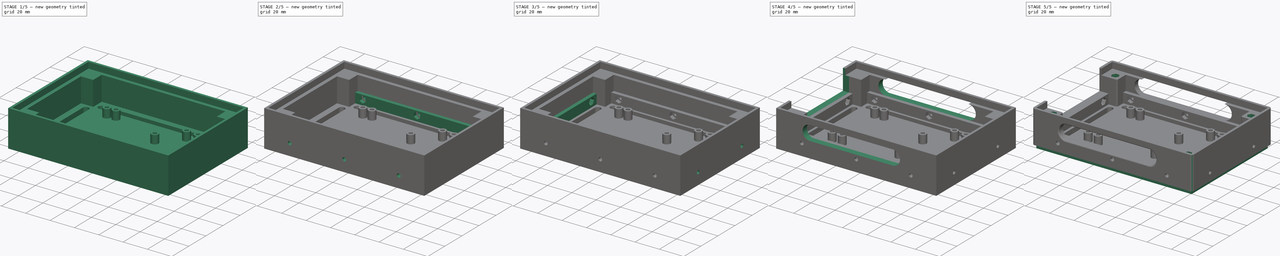
[diagram: build sequence overview — one tinted view per stage of 5, left to right]
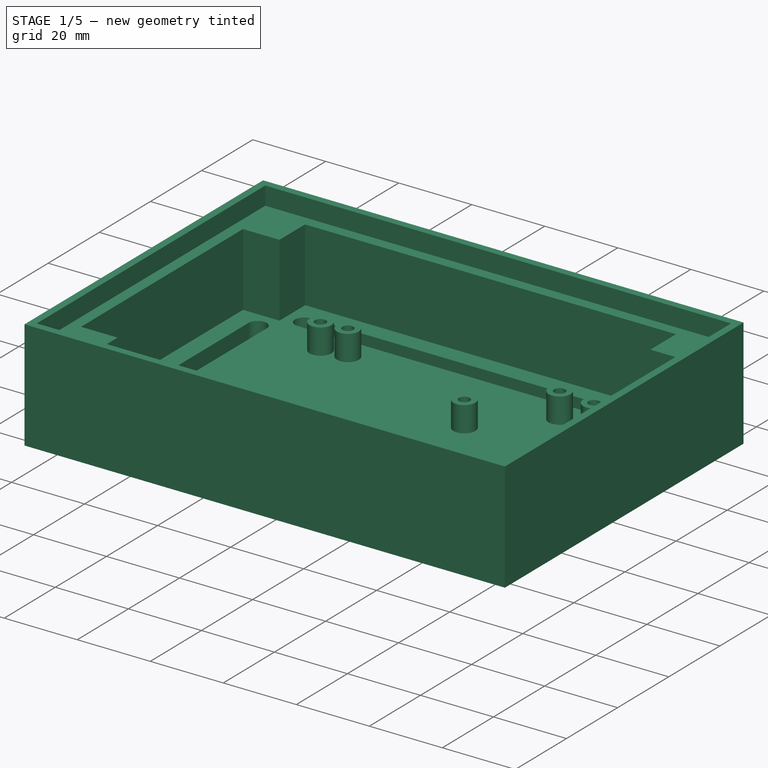
[diagram: stage 1 of 5 — iso view after this stage's code; geometry added in this stage tinted green]
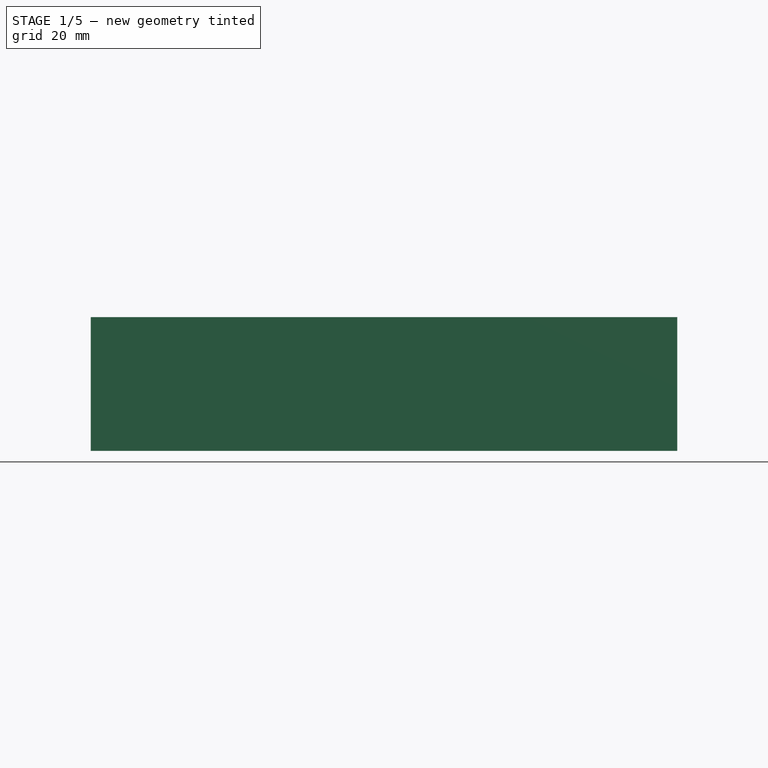
[diagram: stage 1 of 5 — front view after this stage's code; geometry added in this stage tinted green]
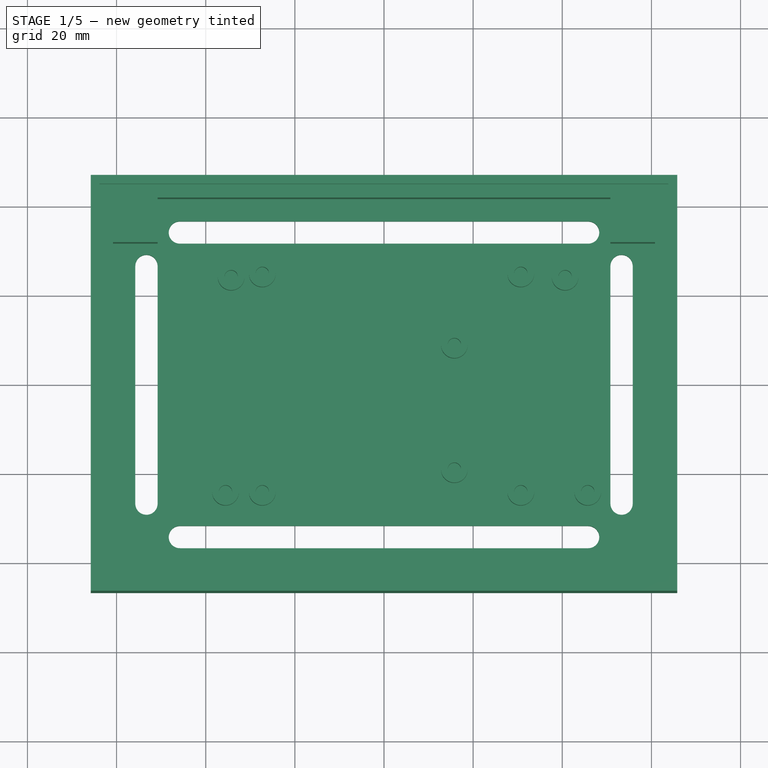
[diagram: stage 1 of 5 — top view after this stage's code; geometry added in this stage tinted green]
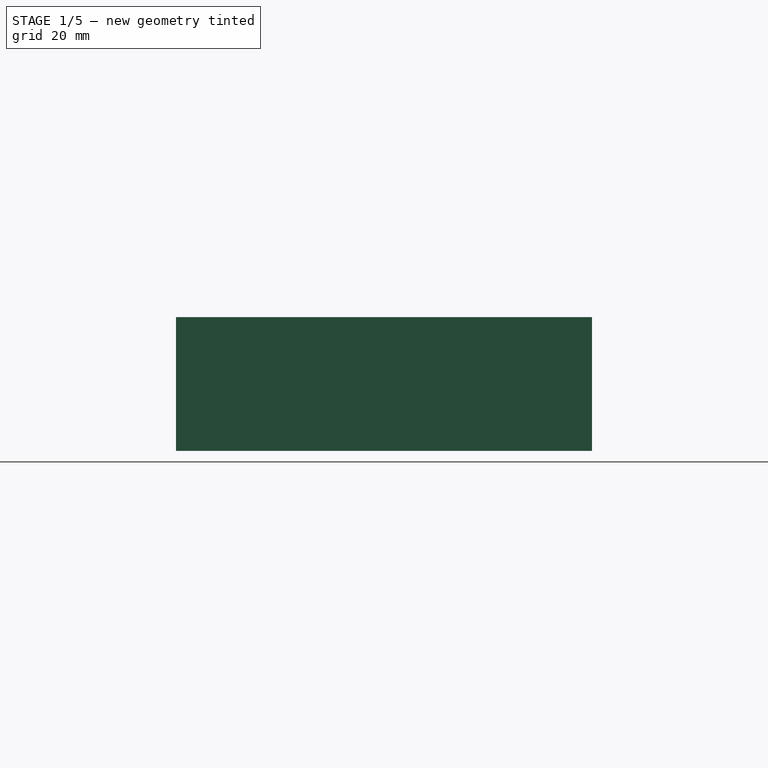
[diagram: stage 1 of 5 — right view after this stage's code; geometry added in this stage tinted green]
FCSTD DOCUMENT  (FreeCAD 0.19R24291 (Git))
Label: Plataforma_Modular_Basada_FreeCAD
License: All rights reserved
LicenseURL: http://en.wikipedia.org/wiki/All_rights_reserved
objects: Sketcher::SketchObject×32, PartDesign::Pocket×21, PartDesign::Pad×8, Spreadsheet::Sheet×1, PartDesign::Body×1, Part::Fillet×1
note: 92 computed .brp shape members not serialized (recipe doc carries the construction recipe); baked Part::Feature solids carry a one-line shape summary decoded from their .brp

FEATURE [Sketcher::SketchObject] Sketch  label="Referancia Uno"
  FullyConstrained = true
  MapMode = 5
  Support = -> [XY_Plane]
  expr: Constraints[9] = <<tab>>.uy
  expr: Constraints[8] = <<tab>>.ux
  sketch-geometry (4):
    g0: LineSegment StartX=-34.29 StartY=26.77 StartZ=0 EndX=34.29 EndY=26.77 EndZ=0
    g1: LineSegment StartX=34.29 StartY=26.77 StartZ=0 EndX=34.29 EndY=-26.77 EndZ=0
    g2: LineSegment StartX=34.29 StartY=-26.77 StartZ=0 EndX=-34.29 EndY=-26.77 EndZ=0
    g3: LineSegment StartX=-34.29 StartY=-26.77 StartZ=0 EndX=-34.29 EndY=26.77 EndZ=0
  constraints (10):
    c: Coincident(g0,g1)
    c: Coincident(g1,g2)
    c: Coincident(g2,g3)
    c: Coincident(g3,g0)
    c: Horizontal(g2)
    c: Vertical(g1)
    c: Symmetric(g0,g0,g-2)
    c: Symmetric(g2,g0,g-1)
    c: DistanceX(g0,g0) = 68.58
    c: DistanceY(g3,g3) = 53.54
FEATURE [Spreadsheet::Sheet] Spreadsheet  label="tab"
  cells = A2=ux: ux: largo de rectanglo arduino Uno; B2(ux)==68.58mm; E2=armaduras; G2=Parede ; A3=uy: Anchura de rectángulo Arduino Uno; B3(uy)==53.54mm; D3=ax: largo de armaduras; E3(ax)==10mm; F3=ep: Espesor de pared ; G3(ep)==5mm; A4=MX: largo de rectanglo arduino Mega.; B4(mx)==101.6mm; D4=AY: Ancho de armaduras.; E4(ay)==10mm; F4=EPC: Espesor bordes.; G4(epc)==2mm; A5=MY: Ancho de rectanglo arduino Mega.; B5(my)==53.34mm; D5=AZ Altura de armaduras.; E5(az)==bz - ec; F5=PI: Parede interior.; G5(pinter)==bz - ep; A6=RPX: largo de rectanglo Raspberry pi.; B6(rpx)==58mm; D6=AD: larga de armadura.; E6(ad)==12mm; A7=RPY: Anchura de rectángulo Raspberry Pi.; B7(rpy)==49mm; E7=Tornillos; B8=Base; D8=TI: Tornillo interior.; E8(ti)==1.5mm; A9=BX: largo de base.; B9(bx)=0; D9=TE: tornillo exterior.; E9(te)==3mm; A10=BY :Ancho de base.; B10(by)=0; D10=TA: altura de tornilloss fuera.; E10(ta)==7mm; A11=BZ :Altura de plataforma inicial.; B11(bz)==30mm; D11=BD: Alto banda.; E11(bd)==8mm; B12=Cables ; D12=TB: espisor de barra al lado.; E12(tb)==3mm; A13=EC: coeficiente de error. ; B13(ec)==5mm; D13=DB: coeficiente de distancie de la banda.; E13(db)==6mm; A14=DC: distancia de agujeros.; B14(dc)==5mm
FEATURE [Sketcher::SketchObject] Sketch001  label="Referancia Raspberry"
  FullyConstrained = true
  MapMode = 5
  Support = -> [XY_Plane]
  expr: Constraints[9] = <<tab>>.rpy
  expr: Constraints[8] = <<tab>>.rpx
  sketch-geometry (4):
    g0: LineSegment StartX=-29 StartY=24.5 StartZ=0 EndX=29 EndY=24.5 EndZ=0
    g1: LineSegment StartX=29 StartY=24.5 StartZ=0 EndX=29 EndY=-24.5 EndZ=0
    g2: LineSegment StartX=29 StartY=-24.5 StartZ=0 EndX=-29 EndY=-24.5 EndZ=0
    g3: LineSegment StartX=-29 StartY=-24.5 StartZ=0 EndX=-29 EndY=24.5 EndZ=0
  constraints (10):
    c: Coincident(g0,g1)
    c: Coincident(g1,g2)
    c: Coincident(g2,g3)
    c: Coincident(g3,g0)
    c: Horizontal(g2)
    c: Vertical(g1)
    c: Symmetric(g0,g0,g-2)
    c: Symmetric(g0,g2,g-1)
    c: DistanceX(g0,g0) = 58
    c: DistanceY(g3,g3) = 49
FEATURE [Sketcher::SketchObject] Sketch002  label="Referancia Mega"
  FullyConstrained = true
  MapMode = 5
  Support = -> [XY_Plane]
  expr: Constraints[9] = <<tab>>.my
  expr: Constraints[8] = <<tab>>.mx
  sketch-geometry (4):
    g0: LineSegment StartX=-50.8 StartY=26.67 StartZ=0 EndX=50.8 EndY=26.67 EndZ=0
    g1: LineSegment StartX=50.8 StartY=26.67 StartZ=0 EndX=50.8 EndY=-26.67 EndZ=0
    g2: LineSegment StartX=50.8 StartY=-26.67 StartZ=0 EndX=-50.8 EndY=-26.67 EndZ=0
    g3: LineSegment StartX=-50.8 StartY=-26.67 StartZ=0 EndX=-50.8 EndY=26.67 EndZ=0
  constraints (10):
    c: Coincident(g0,g1)
    c: Coincident(g1,g2)
    c: Coincident(g2,g3)
    c: Coincident(g3,g0)
    c: Horizontal(g2)
    c: Vertical(g1)
    c: Symmetric(g0,g0,g-2)
    c: Symmetric(g0,g2,g-1)
    c: DistanceX(g0,g0) = 101.6
    c: DistanceY(g3,g3) = 53.34
FEATURE [Sketcher::SketchObject] Sketch003  label="Pared  exterior"
  ExternalGeometry = -> [Sketch002]
  FullyConstrained = true
  MapMode = 5
  Support = -> [XY_Plane]
  expr: Constraints[9] = <<tab>>.dc + <<tab>>.ax + <<tab>>.ep
  expr: Constraints[8] = <<tab>>.ax + <<tab>>.ep
  sketch-geometry (4):
    g0: LineSegment StartX=65.8 StartY=46.67 StartZ=0 EndX=-65.8 EndY=46.67 EndZ=0
    g1: LineSegment StartX=-65.8 StartY=46.67 StartZ=0 EndX=-65.8 EndY=-46.67 EndZ=0
    g2: LineSegment StartX=-65.8 StartY=-46.67 StartZ=0 EndX=65.8 EndY=-46.67 EndZ=0
    g3: LineSegment StartX=65.8 StartY=-46.67 StartZ=0 EndX=65.8 EndY=46.67 EndZ=0
  constraints (10):
    c: Coincident(g0,g1)
    c: Coincident(g1,g2)
    c: Coincident(g2,g3)
    c: Coincident(g3,g0)
    c: Horizontal(g2)
    c: Vertical(g3)
    c: Symmetric(g0,g0,g-2)
    c: Symmetric(g1,g0,g-1)
    c: DistanceX(g0,g-3) = 15
    c: DistanceY(g-3,g0) = 20
FEATURE [PartDesign::Pad] Pad  label="Pared exterior"
  AllowMultiFace = false
  Direction = (1,1,1)
  Length = 30
  Length2 = 100
  Profile = -> Sketch003
  Type = 0
  expr: Length = <<tab>>.bz
FEATURE [Sketcher::SketchObject] Sketch004  label="Parede interior001"
  ExternalGeometry = -> [Sketch003]
  FullyConstrained = true
  MapMode = 5
  Placement = pos=(0,0,30) rot=(0,0,1;0rad)
  Support = -> [Pad]
  expr: Constraints[9] = <<tab>>.ep
  expr: Constraints[8] = <<tab>>.ep
  sketch-geometry (4):
    g0: LineSegment StartX=-60.8 StartY=41.67 StartZ=0 EndX=60.8 EndY=41.67 EndZ=0
    g1: LineSegment StartX=60.8 StartY=41.67 StartZ=0 EndX=60.8 EndY=-41.67 EndZ=0
    g2: LineSegment StartX=60.8 StartY=-41.67 StartZ=0 EndX=-60.8 EndY=-41.67 EndZ=0
    g3: LineSegment StartX=-60.8 StartY=-41.67 StartZ=0 EndX=-60.8 EndY=41.67 EndZ=0
  constraints (10):
    c: Coincident(g0,g1)
    c: Coincident(g1,g2)
    c: Coincident(g2,g3)
    c: Coincident(g3,g0)
    c: Horizontal(g2)
    c: Vertical(g1)
    c: Symmetric(g0,g0,g-2)
    c: Symmetric(g0,g2,g-1)
    c: DistanceX(g-3,g0) = 5
    c: DistanceY(g0,g-3) = 5
FEATURE [PartDesign::Pocket] Pocket  label="Pared interior"
  AllowMultiFace = false
  BaseFeature = -> Pad
  Length = 25
  Length2 = 100
  Profile = -> Sketch004
  Type = 0
  expr: Length = <<tab>>.pinter
FEATURE [Sketcher::SketchObject] Sketch005  label="bordes de pared001"
  ExternalGeometry = -> [Sketch003]
  FullyConstrained = true
  MapMode = 5
  Placement = pos=(0,0,30) rot=(0,0,1;0rad)
  Support = -> [Pocket]
  expr: Constraints[7] = <<tab>>.epc
  expr: Constraints[6] = <<tab>>.epc
  sketch-geometry (4):
    g0: LineSegment StartX=-63.8 StartY=44.67 StartZ=0 EndX=63.8 EndY=44.67 EndZ=0
    g1: LineSegment StartX=63.8 StartY=44.67 StartZ=0 EndX=63.8 EndY=-44.67 EndZ=0
    g2: LineSegment StartX=63.8 StartY=-44.67 StartZ=0 EndX=-63.8 EndY=-44.67 EndZ=0
    g3: LineSegment StartX=-63.8 StartY=-44.67 StartZ=0 EndX=-63.8 EndY=44.67 EndZ=0
  constraints (10):
    c: Coincident(g0,g1)
    c: Coincident(g1,g2)
    c: Coincident(g2,g3)
    c: Coincident(g3,g0)
    c: Horizontal(g2)
    c: Vertical(g1)
    c: DistanceX(g-3,g0) = 2
    c: DistanceY(g0,g-3) = 2
    c: Symmetric(g0,g2,g-1)
    c: Symmetric(g0,g0,g-2)
FEATURE [PartDesign::Pocket] Pocket001  label="Bordes de pared"
  AllowMultiFace = false
  BaseFeature = -> Pocket
  Length = 5
  Length2 = 100
  Profile = -> Sketch005
  Type = 0
  expr: Length = <<tab>>.bz - (<<tab>>.bz - <<tab>>.ec)
FEATURE [Sketcher::SketchObject] Sketch006  label="Aramauras"
  ExternalGeometry = -> [Sketch004]
  FullyConstrained = true
  MapMode = 5
  Placement = pos=(0,0,0) rot=(1,0,0;3.14159rad)
  Support = -> [Pocket001]
  expr: Constraints[20] = <<tab>>.ay
  expr: Constraints[41] = <<tab>>.ay
  expr: Constraints[9] = <<tab>>.ax
  expr: Constraints[10] = <<tab>>.ay
  expr: Constraints[40] = <<tab>>.ay
  expr: Constraints[39] = <<tab>>.ax
  expr: Constraints[19] = <<tab>>.ax
  expr: Constraints[38] = <<tab>>.ax
  sketch-geometry (16):
    g0: LineSegment StartX=-60.8 StartY=41.67 StartZ=0 EndX=-50.8 EndY=41.67 EndZ=0
    g1: LineSegment StartX=-50.8 StartY=41.67 StartZ=0 EndX=-50.8 EndY=31.67 EndZ=0
    g2: LineSegment StartX=-50.8 StartY=31.67 StartZ=0 EndX=-60.8 EndY=31.67 EndZ=0
    g3: LineSegment StartX=-60.8 StartY=31.67 StartZ=0 EndX=-60.8 EndY=41.67 EndZ=0
    g4: LineSegment StartX=50.8 StartY=41.67 StartZ=0 EndX=60.8 EndY=41.67 EndZ=0
    g5: LineSegment StartX=60.8 StartY=41.67 StartZ=0 EndX=60.8 EndY=31.67 EndZ=0
    g6: LineSegment StartX=60.8 StartY=31.67 StartZ=0 EndX=50.8 EndY=31.67 EndZ=0
    g7: LineSegment StartX=50.8 StartY=31.67 StartZ=0 EndX=50.8 EndY=41.67 EndZ=0
    g8: LineSegment StartX=-60.8 StartY=-31.67 StartZ=0 EndX=-50.8 EndY=-31.67 EndZ=0
    g9: LineSegment StartX=-50.8 StartY=-31.67 StartZ=0 EndX=-50.8 EndY=-41.67 EndZ=0
    g10: LineSegment StartX=-50.8 StartY=-41.67 StartZ=0 EndX=-60.8 EndY=-41.67 EndZ=0
    g11: LineSegment StartX=-60.8 StartY=-41.67 StartZ=0 EndX=-60.8 EndY=-31.67 EndZ=0
    g12: LineSegment StartX=50.8 StartY=-31.67 StartZ=0 EndX=60.8 EndY=-31.67 EndZ=0
    g13: LineSegment StartX=60.8 StartY=-31.67 StartZ=0 EndX=60.8 EndY=-41.67 EndZ=0
    g14: LineSegment StartX=60.8 StartY=-41.67 StartZ=0 EndX=50.8 EndY=-41.67 EndZ=0
    g15: LineSegment StartX=50.8 StartY=-41.67 StartZ=0 EndX=50.8 EndY=-31.67 EndZ=0
  constraints (44):
    c: Coincident(g0,g1)
    c: Coincident(g1,g2)
    c: Coincident(g2,g3)
    c: Coincident(g3,g0)
    c: Horizontal(g0)
    c: Horizontal(g2)
    c: Vertical(g1)
    c: Vertical(g3)
    c: Coincident(g-3,g0)
    c: DistanceX(g0,g0) = 10
    c: DistanceY(g3,g3) = 10
    c: Coincident(g4,g5)
    c: Coincident(g5,g6)
    c: Coincident(g6,g7)
    c: Coincident(g7,g4)
    c: Horizontal(g4)
    c: Horizontal(g6)
    c: Vertical(g5)
    c: Vertical(g7)
    c: DistanceX(g4,g4) = 10
    c: DistanceY(g7,g7) = 10
    c: Coincident(g-3,g4)
    c: Coincident(g8,g9)
    c: Coincident(g9,g10)
    c: Coincident(g10,g11)
    c: Coincident(g11,g8)
    c: Horizontal(g8)
    c: Horizontal(g10)
    c: Vertical(g9)
    c: Vertical(g11)
    c: Coincident(g12,g13)
    c: Coincident(g13,g14)
    c: Coincident(g14,g15)
    c: Coincident(g15,g12)
    c: Horizontal(g12)
    c: Horizontal(g14)
    c: Vertical(g13)
    c: Vertical(g15)
    c: DistanceX(g12,g12) = 10
    c: DistanceX(g8,g8) = 10
    c: DistanceY(g9,g9) = 10
    c: DistanceY(g13,g13) = 10
    c: Coincident(g13,g-4)
    c: Coincident(g10,g-4)
FEATURE [PartDesign::Pad] Pad001  label="Las Armaduras"
  AllowMultiFace = false
  BaseFeature = -> Pocket001
  Direction = (1,1,1)
  Length = 25
  Length2 = 100
  Profile = -> Sketch006
  Reversed = true
  Type = 0
  expr: Length = <<tab>>.az
FEATURE [Sketcher::SketchObject] Sketch007  label="agujeros laterales001"
  ExternalGeometry = -> [Sketch006]
  FullyConstrained = true
  MapMode = 5
  Placement = pos=(0,0,0) rot=(1,0,0;3.14159rad)
  Support = -> [Pad001]
  expr: Constraints[39] = <<tab>>.ec
  expr: Constraints[6] = <<tab>>.ec
  expr: Constraints[38] = <<tab>>.ec
  expr: Constraints[26] = <<tab>>.dc
  expr: Constraints[16] = <<tab>>.ec
  expr: Constraints[8] = <<tab>>.dc
  expr: Constraints[37] = <<tab>>.ec
  expr: Constraints[35] = <<tab>>.dc
  expr: Constraints[36] = <<tab>>.ec
  expr: Constraints[34] = <<tab>>.ec
  expr: Constraints[18] = <<tab>>.dc
  expr: Constraints[25] = <<tab>>.ec
  expr: Constraints[17] = <<tab>>.ec
  expr: Constraints[33] = <<tab>>.ec
  expr: Constraints[15] = <<tab>>.ec
  expr: Constraints[7] = <<tab>>.ec
  sketch-geometry (16):
    g0: ArcOfCircle CenterX=-45.8 CenterY=34.17 CenterZ=0 NormalX=0 NormalY=0 NormalZ=1 AngleXU=0 Radius=2.5 StartAngle=1.5708 EndAngle=4.71239
    g1: ArcOfCircle CenterX=45.8 CenterY=34.17 CenterZ=0 NormalX=0 NormalY=0 NormalZ=1 AngleXU=0 Radius=2.5 StartAngle=4.71239 EndAngle=7.85398
    g2: LineSegment StartX=-45.8 StartY=31.67 StartZ=0 EndX=45.8 EndY=31.67 EndZ=0
    g3: LineSegment StartX=-45.8 StartY=36.67 StartZ=0 EndX=45.8 EndY=36.67 EndZ=0
    g4: ArcOfCircle CenterX=53.3 CenterY=26.67 CenterZ=0 NormalX=0 NormalY=0 NormalZ=1 AngleXU=0 Radius=2.5 StartAngle=0 EndAngle=3.14159
    g5: ArcOfCircle CenterX=53.3 CenterY=-26.67 CenterZ=0 NormalX=0 NormalY=0 NormalZ=1 AngleXU=0 Radius=2.5 StartAngle=3.14159 EndAngle=6.28319
    g6: LineSegment StartX=50.8 StartY=26.67 StartZ=0 EndX=50.8 EndY=-26.67 EndZ=0
    g7: LineSegment StartX=55.8 StartY=26.67 StartZ=0 EndX=55.8 EndY=-26.67 EndZ=0
    g8: ArcOfCircle CenterX=-45.8 CenterY=-34.17 CenterZ=0 NormalX=0 NormalY=0 NormalZ=1 AngleXU=0 Radius=2.5 StartAngle=1.5708 EndAngle=4.71239
    g9: ArcOfCircle CenterX=45.8 CenterY=-34.17 CenterZ=0 NormalX=0 NormalY=0 NormalZ=1 AngleXU=0 Radius=2.5 StartAngle=4.71239 EndAngle=7.85398
    g10: LineSegment StartX=-45.8 StartY=-36.67 StartZ=0 EndX=45.8 EndY=-36.67 EndZ=0
    g11: LineSegment StartX=-45.8 StartY=-31.67 StartZ=0 EndX=45.8 EndY=-31.67 EndZ=0
    g12: ArcOfCircle CenterX=-53.3 CenterY=26.67 CenterZ=0 NormalX=0 NormalY=0 NormalZ=1 AngleXU=0 Radius=2.5 StartAngle=3e-16 EndAngle=3.14159
    g13: ArcOfCircle CenterX=-53.3 CenterY=-26.67 CenterZ=0 NormalX=0 NormalY=0 NormalZ=1 AngleXU=0 Radius=2.5 StartAngle=3.14159 EndAngle=6.28319
    g14: LineSegment StartX=-55.8 StartY=26.67 StartZ=0 EndX=-55.8 EndY=-26.67 EndZ=0
    g15: LineSegment StartX=-50.8 StartY=26.67 StartZ=0 EndX=-50.8 EndY=-26.67 EndZ=0
  constraints (40):
    c: Tangent(g0,g3) = 1.5708
    c: Tangent(g0,g2) = -1.5708
    c: Tangent(g2,g1) = -1.5708
    c: Tangent(g3,g1) = 1.5708
    c: Horizontal(g2)
    c: Equal(g0,g1)
    c: DistanceY(g0,g0) = 5
    c: DistanceX(g-3,g0) = 5
    c: DistanceY(g0,g-3) = 5
    c: Tangent(g4,g7) = 1.5708
    c: Tangent(g4,g6) = -1.5708
    c: Tangent(g6,g5) = -1.5708
    c: Tangent(g7,g5) = 1.5708
    c: Vertical(g6)
    c: Equal(g4,g5)
    c: DistanceX(g4,g4) = 5
    c: DistanceY(g4,g-5) = 5
    c: DistanceY(g-6,g5) = 5
    c: DistanceX(g4,g-5) = 5
    c: Tangent(g8,g11) = 1.5708
    c: Tangent(g8,g10) = -1.5708
    c: Tangent(g10,g9) = -1.5708
    c: Tangent(g11,g9) = 1.5708
    c: Horizontal(g10)
    c: Equal(g8,g9)
    c: DistanceY(g8,g8) = 5
    c: DistanceY(g-8,g8) = 5
    c: Tangent(g12,g15) = 1.5708
    c: Tangent(g12,g14) = -1.5708
    c: Tangent(g14,g13) = -1.5708
    c: Tangent(g15,g13) = 1.5708
    c: Vertical(g14)
    c: Equal(g12,g13)
    c: DistanceX(g12,g12) = 5
    c: DistanceY(g-9,g13) = 5
    c: DistanceX(g-9,g13) = 5
    c: DistanceY(g12,g-10) = 5
    c: DistanceX(g-8,g8) = 5
    c: DistanceX(g1,g-4) = 5
    c: DistanceX(g9,g-7) = 5
FEATURE [PartDesign::Pocket] Pocket002  label="Los Agujeros laterales"
  AllowMultiFace = false
  BaseFeature = -> Pad001
  Length = 5
  Length2 = 100
  Profile = -> Sketch007
  Type = 0
  expr: Length = <<tab>>.ep
FEATURE [Sketcher::SketchObject] Sketch008  label="Tornillos Uno + mega + Raspi 001"
  ExternalGeometry = -> [Sketch002]
  FullyConstrained = true
  MapMode = 5
  Placement = pos=(0,0,0) rot=(1,0,0;3.14159rad)
  Support = -> [Pocket002]
  expr: Constraints[33] = <<tab>>.ti
  expr: Constraints[32] = <<tab>>.te
  expr: Constraints[11] = <<tab>>.ti
  expr: Constraints[10] = <<tab>>.te
  sketch-geometry (20):
    g0: Circle CenterX=-35.56 CenterY=24.13 CenterZ=0 NormalX=0 NormalY=0 NormalZ=1 AngleXU=0 Radius=1.5
    g1: Circle CenterX=15.79 CenterY=19.05 CenterZ=0 NormalX=0 NormalY=0 NormalZ=1 AngleXU=0 Radius=1.5
    g2: Circle CenterX=-34.29 CenterY=-24.13 CenterZ=0 NormalX=0 NormalY=0 NormalZ=1 AngleXU=0 Radius=1.5
    g3: Circle CenterX=15.79 CenterY=-8.89 CenterZ=0 NormalX=0 NormalY=0 NormalZ=1 AngleXU=0 Radius=3
    g4: Circle CenterX=45.72 CenterY=24.13 CenterZ=0 NormalX=0 NormalY=0 NormalZ=1 AngleXU=0 Radius=1.5
    g5: Circle CenterX=40.64 CenterY=-24.13 CenterZ=0 NormalX=0 NormalY=0 NormalZ=1 AngleXU=0 Radius=1.5
    g6: Circle CenterX=45.72 CenterY=24.13 CenterZ=0 NormalX=0 NormalY=0 NormalZ=1 AngleXU=0 Radius=3
    g7: Circle CenterX=15.79 CenterY=19.05 CenterZ=0 NormalX=0 NormalY=0 NormalZ=1 AngleXU=0 Radius=3
    g8: Circle CenterX=-35.56 CenterY=24.13 CenterZ=0 NormalX=0 NormalY=0 NormalZ=1 AngleXU=0 Radius=3
    g9: Circle CenterX=-34.29 CenterY=-24.13 CenterZ=0 NormalX=0 NormalY=0 NormalZ=1 AngleXU=0 Radius=3
    g10: Circle CenterX=15.79 CenterY=-8.89 CenterZ=0 NormalX=0 NormalY=0 NormalZ=1 AngleXU=0 Radius=1.5
    g11: Circle CenterX=40.64 CenterY=-24.13 CenterZ=0 NormalX=0 NormalY=0 NormalZ=1 AngleXU=0 Radius=3
    g12: Circle CenterX=-27.3 CenterY=24.13 CenterZ=0 NormalX=0 NormalY=0 NormalZ=1 AngleXU=0 Radius=3
    g13: Circle CenterX=-27.3 CenterY=-24.87 CenterZ=0 NormalX=0 NormalY=0 NormalZ=1 AngleXU=0 Radius=3
    g14: Circle CenterX=30.7 CenterY=24.13 CenterZ=0 NormalX=0 NormalY=0 NormalZ=1 AngleXU=0 Radius=3
    g15: Circle CenterX=30.7 CenterY=-24.87 CenterZ=0 NormalX=0 NormalY=0 NormalZ=1 AngleXU=0 Radius=3
    g16: Circle CenterX=30.7 CenterY=24.13 CenterZ=0 NormalX=0 NormalY=0 NormalZ=1 AngleXU=0 Radius=1.5
    g17: Circle CenterX=30.7 CenterY=-24.87 CenterZ=0 NormalX=0 NormalY=0 NormalZ=1 AngleXU=0 Radius=1.5
    g18: Circle CenterX=-27.3 CenterY=24.13 CenterZ=0 NormalX=0 NormalY=0 NormalZ=1 AngleXU=0 Radius=1.5
    g19: Circle CenterX=-27.3 CenterY=-24.87 CenterZ=0 NormalX=0 NormalY=0 NormalZ=1 AngleXU=0 Radius=1.5
  constraints (50):
    c: Equal(g4,g1)
    c: Equal(g1,g0)
    c: Equal(g0,g2)
    c: Equal(g2,g10)
    c: Equal(g10,g5)
    c: Equal(g6,g7)
    c: Equal(g7,g8)
    c: Equal(g8,g9)
    c: Equal(g9,g3)
    c: Equal(g3,g11)
    c: Radius(g8) = 3
    c: Radius(g0) = 1.5
    c: Coincident(g0,g8)
    c: Coincident(g1,g7)
    c: Coincident(g4,g6)
    c: Coincident(g5,g11)
    c: Coincident(g10,g3)
    c: Coincident(g2,g9)
    c: DistanceX(g2,g0) = -1.27
    c: DistanceY(g2,g3) = 15.24
    c: DistanceX(g0,g4) = 81.28
    c: DistanceX(g2,g5) = 74.93
    c: DistanceY(g5,g2) = 0
    c: DistanceY(g4,g0) = 0
    c: DistanceY(g0,g-3) = 2.54
    c: DistanceX(g-3,g0) = 15.24
    c: Equal(g16,g18)
    c: Equal(g18,g19)
    c: Equal(g19,g17)
    c: Equal(g14,g12)
    c: Equal(g12,g13)
    c: Equal(g13,g15)
    c: Radius(g14) = 3
    c: Radius(g17) = 1.5
    c: Coincident(g12,g18)
    c: Coincident(g14,g16)
    c: Coincident(g17,g15)
    c: Coincident(g13,g19)
    c: DistanceX(g12,g14) = 58
    c: DistanceY(g13,g12) = 49
    c: DistanceY(g14,g12) = 0
    c: DistanceX(g12,g13) = 0
    c: DistanceY(g13,g15) = 0
    c: DistanceX(g14,g15) = 0
    c: DistanceY(g0,g12) = 0
    c: DistanceX(g-3,g12) = 23.5
    c: DistanceX(g2,g1) = 50.08
    c: DistanceX(g2,g3) = 50.08
    c: DistanceY(g3,g1) = 27.94
    c: DistanceY(g1,g0) = 5.08
FEATURE [PartDesign::Pad] Pad002  label="Suporte de Tornillos por RPi, Mega, Uno"
  AllowMultiFace = false
  BaseFeature = -> Pocket002
  Direction = (1,1,1)
  Length = 12
  Length2 = 100
  Profile = -> Sketch008
  Reversed = true
  Type = 0
  expr: Length = <<tab>>.ep + <<tab>>.ta
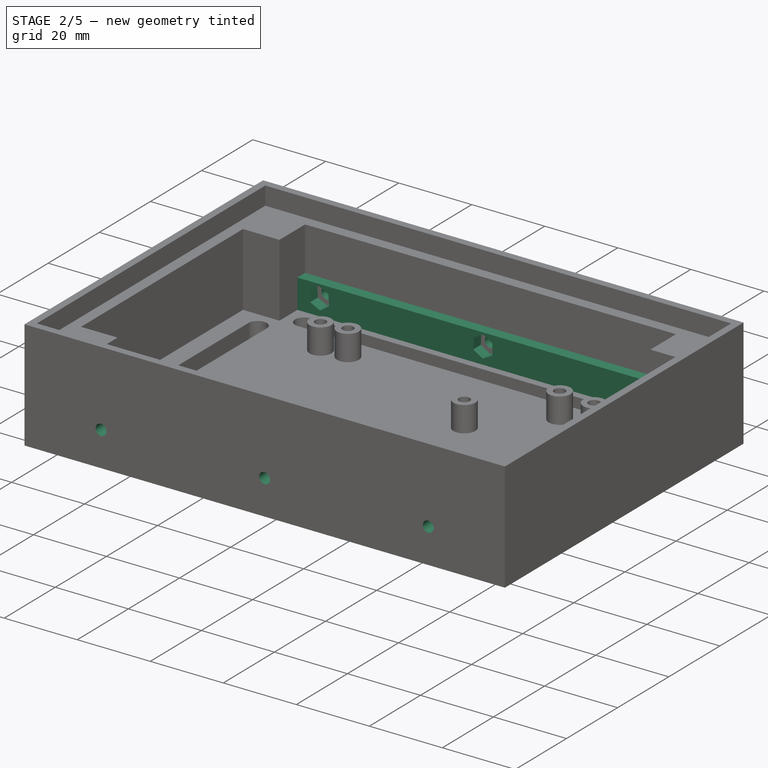
[diagram: stage 2 of 5 — iso view after this stage's code; geometry added in this stage tinted green]
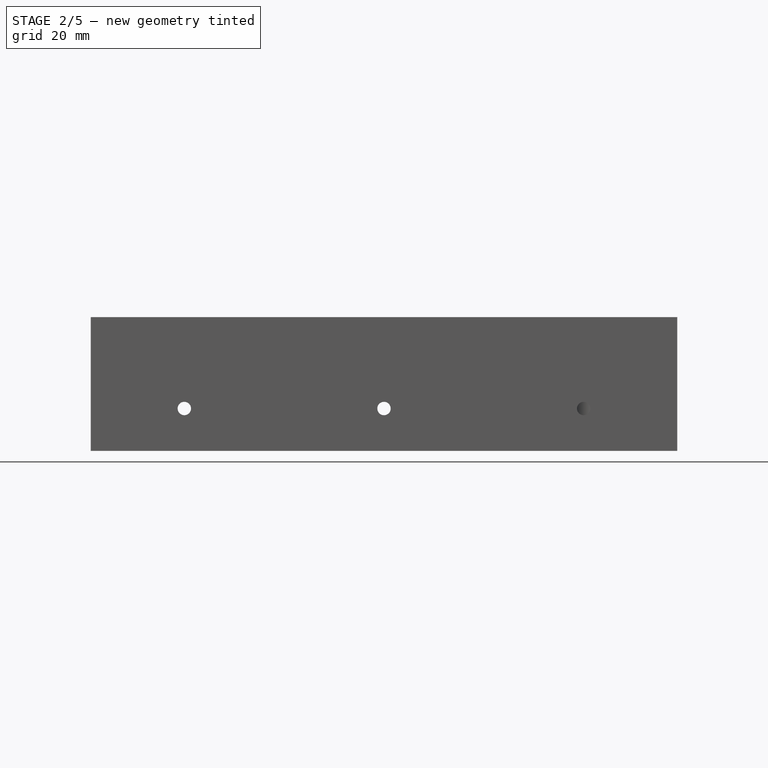
[diagram: stage 2 of 5 — front view after this stage's code; geometry added in this stage tinted green]
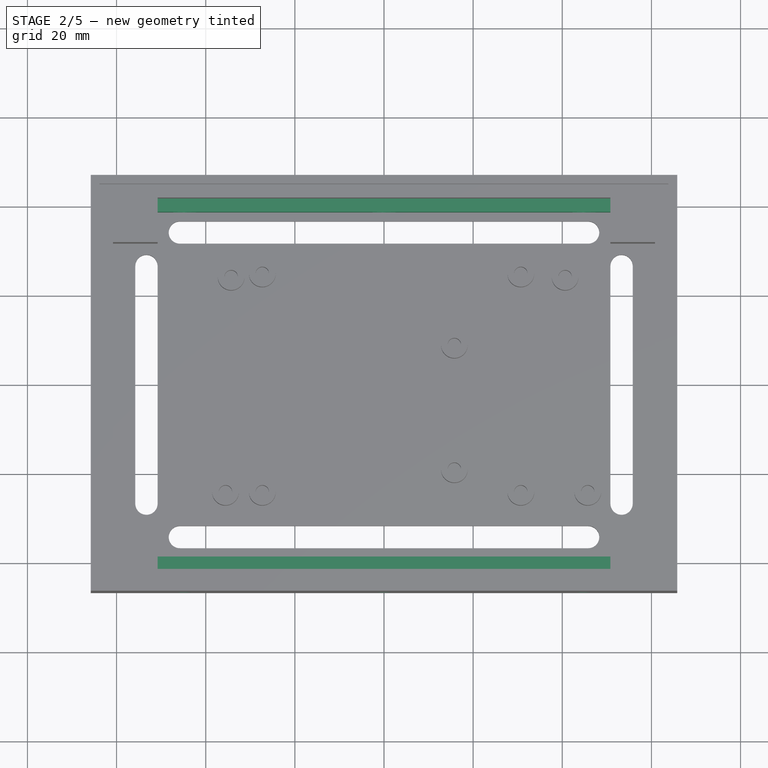
[diagram: stage 2 of 5 — top view after this stage's code; geometry added in this stage tinted green]
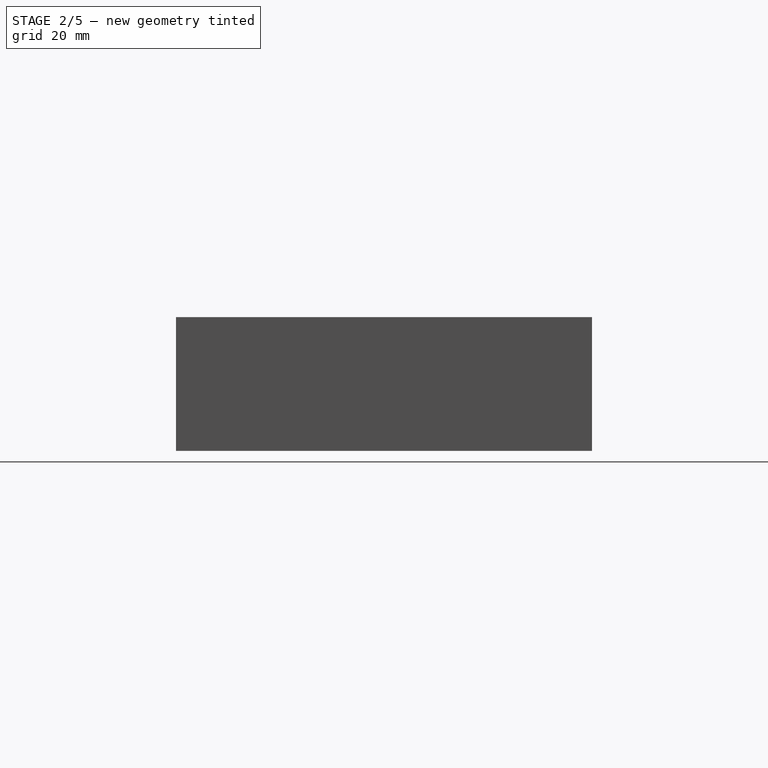
[diagram: stage 2 of 5 — right view after this stage's code; geometry added in this stage tinted green]
FEATURE [Sketcher::SketchObject] Sketch009  label="tornillos armaduras001"
  ExternalGeometry = -> [Sketch006]
  FullyConstrained = false
  MapMode = 5
  Placement = pos=(0,0,0) rot=(1,0,0;3.14159rad)
  Support = -> [Pad002]
  expr: Constraints[4] = <<tab>>.te
  expr: Constraints[2] = <<tab>>.ti
  sketch-geometry (8):
    g0: Circle CenterX=-55.7336 CenterY=36.67 CenterZ=0 NormalX=0 NormalY=0 NormalZ=1 AngleXU=0 Radius=1.5
    g1: Circle CenterX=-55.7336 CenterY=36.67 CenterZ=0 NormalX=0 NormalY=0 NormalZ=1 AngleXU=0 Radius=3
    g2: Circle CenterX=55.2599 CenterY=36.67 CenterZ=0 NormalX=0 NormalY=0 NormalZ=1 AngleXU=0 Radius=3
    g3: Circle CenterX=55.2599 CenterY=36.67 CenterZ=0 NormalX=0 NormalY=0 NormalZ=1 AngleXU=0 Radius=1.5
    g4: Circle CenterX=55.8 CenterY=-36.67 CenterZ=0 NormalX=0 NormalY=0 NormalZ=1 AngleXU=0 Radius=1.5
    g5: Circle CenterX=55.8 CenterY=-36.67 CenterZ=0 NormalX=0 NormalY=0 NormalZ=1 AngleXU=0 Radius=3
    g6: Circle CenterX=-55.8 CenterY=-36.67 CenterZ=0 NormalX=0 NormalY=0 NormalZ=1 AngleXU=0 Radius=1.5
    g7: Circle CenterX=-55.8 CenterY=-36.67 CenterZ=0 NormalX=0 NormalY=0 NormalZ=1 AngleXU=0 Radius=3
  constraints (15):
    c: Equal(g0,g3)
    c: Equal(g3,g6)
    c: Radius(g4) = 1.5
    c: Equal(g7,g1)
    c: Radius(g1) = 3
    c: Coincident(g0,g1)
    c: Coincident(g2,g3)
    c: Coincident(g6,g7)
    c: Coincident(g5,g4)
    c: DistanceX(g4,g-6) = 5
    c: DistanceY(g-6,g4) = 5
    c: DistanceX(g6,g-5) = 5
    c: DistanceY(g-5,g6) = 5
    c: DistanceY(g0,g-3) = 5
    c: DistanceY(g2,g-4) = 5
FEATURE [PartDesign::Pad] Pad003  label="Los tornillos de armaduras"
  AllowMultiFace = false
  BaseFeature = -> Pad002
  Direction = (1,1,1)
  Length = 25
  Length2 = 100
  Profile = -> Sketch009
  Reversed = true
  Type = 0
  expr: Length = <<tab>>.az
FEATURE [Sketcher::SketchObject] Sketch010  label="barra de soporte izquierda001"
  ExternalGeometry = -> [Sketch006]
  FullyConstrained = true
  MapMode = 5
  Placement = pos=(0,31.67,0) rot=(1,0,0;1.5708rad)
  Support = -> [Pad003]
  expr: Constraints[9] = <<tab>>.ep
  expr: Constraints[8] = <<tab>>.bd
  sketch-geometry (4):
    g0: LineSegment StartX=-50.8 StartY=13 StartZ=0 EndX=50.8 EndY=13 EndZ=0
    g1: LineSegment StartX=50.8 StartY=13 StartZ=0 EndX=50.8 EndY=5 EndZ=0
    g2: LineSegment StartX=50.8 StartY=5 StartZ=0 EndX=-50.8 EndY=5 EndZ=0
    g3: LineSegment StartX=-50.8 StartY=5 StartZ=0 EndX=-50.8 EndY=13 EndZ=0
  constraints (12):
    c: Coincident(g0,g1)
    c: Coincident(g1,g2)
    c: Coincident(g2,g3)
    c: Coincident(g3,g0)
    c: Horizontal(g0)
    c: Horizontal(g2)
    c: Vertical(g1)
    c: Vertical(g3)
    c: DistanceY(g3,g3) = 8
    c: DistanceY(g-3,g2) = 5
    c: DistanceX(g-3,g2) = 0
    c: DistanceX(g1,g-4) = 0
FEATURE [PartDesign::Pad] Pad004  label="La barra de suporte de izquierda "
  AllowMultiFace = false
  BaseFeature = -> Pad003
  Direction = (1,1,1)
  Length = 3
  Length2 = 100
  Profile = -> Sketch010
  Type = 0
  expr: Length = <<tab>>.tb
FEATURE [Sketcher::SketchObject] Sketch011  label="agujeros barra izquierda001"
  ExternalGeometry = -> [Sketch010]
  FullyConstrained = true
  MapMode = 5
  Placement = pos=(60.8,0,0) rot=(0.57735,-0.57735,-0.57735;2.0944rad)
  Support = -> [Pad004]
  expr: Constraints[6] = <<tab>>.db
  expr: Constraints[2] = <<tab>>.ti
  sketch-geometry (3):
    g0: Circle CenterX=-25.67 CenterY=9.5 CenterZ=0 NormalX=0 NormalY=0 NormalZ=1 AngleXU=0 Radius=1.5
    g1: Circle CenterX=25.67 CenterY=9.5 CenterZ=0 NormalX=0 NormalY=0 NormalZ=1 AngleXU=0 Radius=1.5
    g2: Circle CenterX=0 CenterY=9.5 CenterZ=0 NormalX=0 NormalY=0 NormalZ=1 AngleXU=0 Radius=1.5
  constraints (8):
    c: Symmetric(g1,g0,g-2)
    c: DistanceX(g2,g-1) = 0
    c: Radius(g1) = 1.5
    c: Equal(g1,g2)
    c: Equal(g1,g0)
    c: DistanceY(g-3,g0) = 4.5
    c: DistanceX(g-3,g0) = 6
    c: DistanceY(g-3,g2) = 4.5
FEATURE [PartDesign::Pocket] Pocket003  label="Agujeros barra izquierda"
  AllowMultiFace = false
  BaseFeature = -> Pad004
  Length = 8
  Length2 = 100
  Profile = -> Sketch011
  Type = 0
  expr: Length = <<tab>>.ep + <<tab>>.tb
FEATURE [Sketcher::SketchObject] Sketch012  label="Tuercas de izquierda001"
  ExternalGeometry = -> [Sketch011]
  FullyConstrained = false
  MapMode = 5
  Placement = pos=(60.8,0,0) rot=(0.57735,-0.57735,-0.57735;2.0944rad)
  Support = -> [Pocket003]
  expr: Constraints[53] = <<tab>>.te
  sketch-geometry (21):
    g0: LineSegment StartX=-0.0987446 StartY=6.50163 StartZ=0 EndX=2.5473 EndY=7.9153 EndZ=0
    g1: LineSegment StartX=2.5473 StartY=7.9153 StartZ=0 EndX=2.64604 EndY=10.9137 EndZ=0
    g2: LineSegment StartX=2.64604 StartY=10.9137 StartZ=0 EndX=0.0987446 EndY=12.4984 EndZ=0
    g3: LineSegment StartX=0.0987446 StartY=12.4984 StartZ=0 EndX=-2.5473 EndY=11.0847 EndZ=0
    g4: LineSegment StartX=-2.5473 StartY=11.0847 StartZ=0 EndX=-2.64604 EndY=8.08633 EndZ=0
    g5: LineSegment StartX=-2.64604 StartY=8.08633 StartZ=0 EndX=-0.0987446 EndY=6.50163 EndZ=0
    g6: Circle CenterX=0 CenterY=9.5 CenterZ=0 NormalX=0 NormalY=0 NormalZ=1 AngleXU=0 Radius=3
    g7: LineSegment StartX=44.9821 StartY=6.50553 StartZ=0 EndX=47.4843 EndY=8.16043 EndZ=0
    g8: LineSegment StartX=47.4843 StartY=8.16043 StartZ=0 EndX=47.3023 EndY=11.1549 EndZ=0
    g9: LineSegment StartX=47.3023 StartY=11.1549 StartZ=0 EndX=44.6179 EndY=12.4945 EndZ=0
    g10: LineSegment StartX=44.6179 StartY=12.4945 StartZ=0 EndX=42.1157 EndY=10.8396 EndZ=0
    g11: LineSegment StartX=42.1157 StartY=10.8396 StartZ=0 EndX=42.2977 EndY=7.8451 EndZ=0
    g12: LineSegment StartX=42.2977 StartY=7.8451 StartZ=0 EndX=44.9821 EndY=6.50553 EndZ=0
    g13: Circle CenterX=44.8 CenterY=9.5 CenterZ=0 NormalX=0 NormalY=0 NormalZ=1 AngleXU=0 Radius=3
    g14: LineSegment StartX=-44.5938 StartY=6.50709 StartZ=0 EndX=-42.105 EndY=8.18212 EndZ=0
    g15: LineSegment StartX=-42.105 StartY=8.18212 StartZ=0 EndX=-42.3112 EndY=11.175 EndZ=0
    g16: LineSegment StartX=-42.3112 StartY=11.175 StartZ=0 EndX=-45.0062 EndY=12.4929 EndZ=0
    g17: LineSegment StartX=-45.0062 StartY=12.4929 StartZ=0 EndX=-47.495 EndY=10.8179 EndZ=0
    g18: LineSegment StartX=-47.495 StartY=10.8179 StartZ=0 EndX=-47.2888 EndY=7.82498 EndZ=0
    g19: LineSegment StartX=-47.2888 StartY=7.82498 StartZ=0 EndX=-44.5938 EndY=6.50709 EndZ=0
    g20: Circle CenterX=-44.8 CenterY=9.5 CenterZ=0 NormalX=0 NormalY=0 NormalZ=1 AngleXU=0 Radius=3
  constraints (42):
    c: Coincident(g0,g1)
    c: Coincident(g1,g2)
    c: Coincident(g2,g3)
    c: Coincident(g3,g4)
    c: Coincident(g4,g5)
    c: Coincident(g5,g0)
    c: Equal(g0, g1-g5) x5
    c: PointOnObject(g0,g6)
    c: PointOnObject(g1,g6)
    c: PointOnObject(g2,g6)
    c: PointOnObject(g3,g6)
    c: PointOnObject(g4,g6)
    c: PointOnObject(g5,g6)
    c: Coincident(g7,g8)
    c: Coincident(g8,g9)
    c: Coincident(g9,g10)
    c: Coincident(g10,g11)
    c: Coincident(g11,g12)
    c: Coincident(g12,g7)
    c: Equal(g7, g8-g12) x5
    c: PointOnObject(g7,g13)
    c: PointOnObject(g8,g13)
    c: PointOnObject(g9,g13)
    c: PointOnObject(g10,g13)
    c: PointOnObject(g11,g13)
    c: PointOnObject(g12,g13)
    c: Coincident(g14,g15)
    c: Coincident(g15,g16)
    c: Coincident(g16,g17)
    c: Coincident(g17,g18)
    c: Coincident(g18,g19)
    c: Coincident(g19,g14)
    c: Equal(g14, g15-g19) x5
    c: PointOnObject(g14,g20)
    c: PointOnObject(g15,g20)
    c: PointOnObject(g16,g20)
    c: PointOnObject(g17,g20)
    c: PointOnObject(g18,g20)
    c: PointOnObject(g19,g20)
    c: Equal(g6,g20)
    c: Equal(g20,g13)
    c: Radius(g20) = 3
FEATURE [PartDesign::Pocket] Pocket004  label="Tuercas de izquierda de pared"
  AllowMultiFace = false
  BaseFeature = -> Pocket003
  Length = 3
  Length2 = 100
  Profile = -> Sketch012
  Type = 0
  expr: Length = <<tab>>.te
FEATURE [Sketcher::SketchObject] Sketch013  label="barra de soporte derecha001"
  ExternalGeometry = -> [Sketch006]
  FullyConstrained = true
  MapMode = 5
  Placement = pos=(0,-2.88858,4.64318) rot=(1,0,0;0.55652rad)
  Support = -> [Pocket004]
  expr: Constraints[10] = <<tab>>.ep
  expr: Constraints[7] = <<tab>>.bd
  sketch-geometry (4):
    g0: LineSegment StartX=50.8 StartY=-22.3819 StartZ=0 EndX=-50.8 EndY=-22.3819 EndZ=0
    g1: LineSegment StartX=-50.8 StartY=-22.3819 StartZ=0 EndX=-50.8 EndY=-30.3819 EndZ=0
    g2: LineSegment StartX=-50.8 StartY=-30.3819 StartZ=0 EndX=50.8 EndY=-30.3819 EndZ=0
    g3: LineSegment StartX=50.8 StartY=-30.3819 StartZ=0 EndX=50.8 EndY=-22.3819 EndZ=0
  constraints (11):
    c: Coincident(g0,g1)
    c: Coincident(g1,g2)
    c: Coincident(g2,g3)
    c: Coincident(g3,g0)
    c: Horizontal(g2)
    c: Vertical(g1)
    c: Vertical(g3)
    c: DistanceY(g3,g3) = 8
    c: DistanceX(g-4,g2) = 0
    c: Symmetric(g0,g0,g-2)
    c: DistanceY(g-4,g2) = 5
FEATURE [PartDesign::Pad] Pad005  label="Barra de soporte derecha"
  AllowMultiFace = false
  BaseFeature = -> Pocket004
  Direction = (1,1,1)
  Length = 3
  Length2 = 100
  Profile = -> Sketch013
  Type = 0
  expr: Length = <<tab>>.tb
FEATURE [Sketcher::SketchObject] Sketch014  label="agujeros barra derecha001"
  ExternalGeometry = -> [Sketch013]
  FullyConstrained = false
  MapMode = 5
  Placement = pos=(0,-38.67,0) rot=(0,0.707107,0.707107;3.14159rad)
  Support = -> [Pad005]
  expr: Constraints[4] = <<tab>>.db
  expr: Constraints[2] = <<tab>>.ti
  sketch-geometry (3):
    g0: Circle CenterX=-44.8 CenterY=9.5 CenterZ=0 NormalX=0 NormalY=0 NormalZ=1 AngleXU=0 Radius=1.5
    g1: Circle CenterX=0 CenterY=9.5 CenterZ=0 NormalX=0 NormalY=0 NormalZ=1 AngleXU=0 Radius=1.5
    g2: Circle CenterX=44.8 CenterY=9.5 CenterZ=0 NormalX=0 NormalY=0 NormalZ=1 AngleXU=0 Radius=1.5
  constraints (8):
    c: Equal(g0,g1)
    c: Equal(g1,g2)
    c: Radius(g1) = 1.5
    c: DistanceY(g-3,g0) = 4.5
    c: DistanceX(g-3,g0) = 6
    c: DistanceY(g-3,g1) = 4.5
    c: DistanceX(g1,g-1) = 0
    c: Symmetric(g0,g2,g-2)
FEATURE [PartDesign::Pocket] Pocket005  label="Agujeros barra derecha"
  AllowMultiFace = false
  BaseFeature = -> Pad005
  Length = 8
  Length2 = 100
  Profile = -> Sketch014
  Type = 0
  expr: Length = <<tab>>.ep + <<tab>>.tb
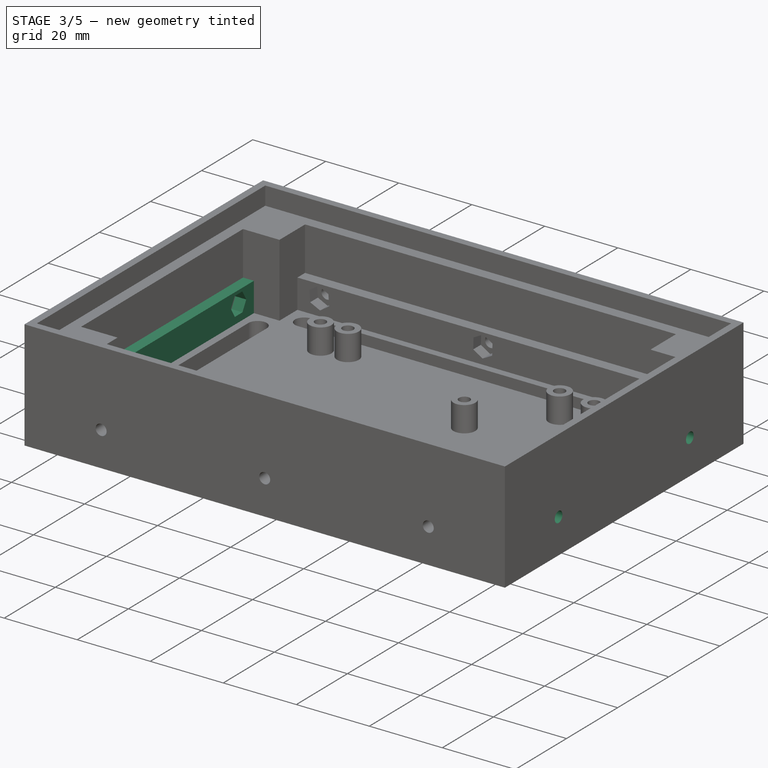
[diagram: stage 3 of 5 — iso view after this stage's code; geometry added in this stage tinted green]
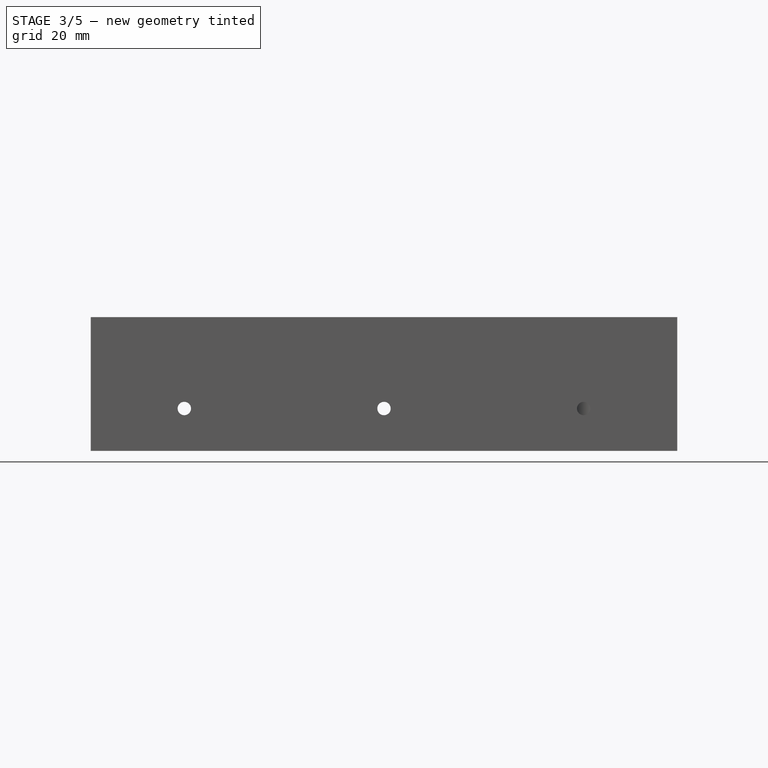
[diagram: stage 3 of 5 — front view after this stage's code; geometry added in this stage tinted green]
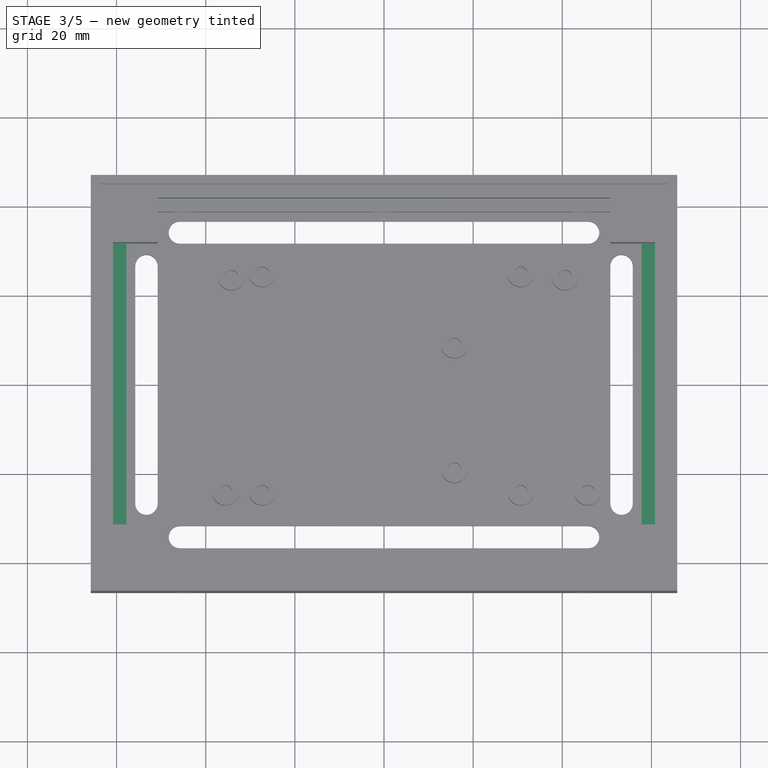
[diagram: stage 3 of 5 — top view after this stage's code; geometry added in this stage tinted green]
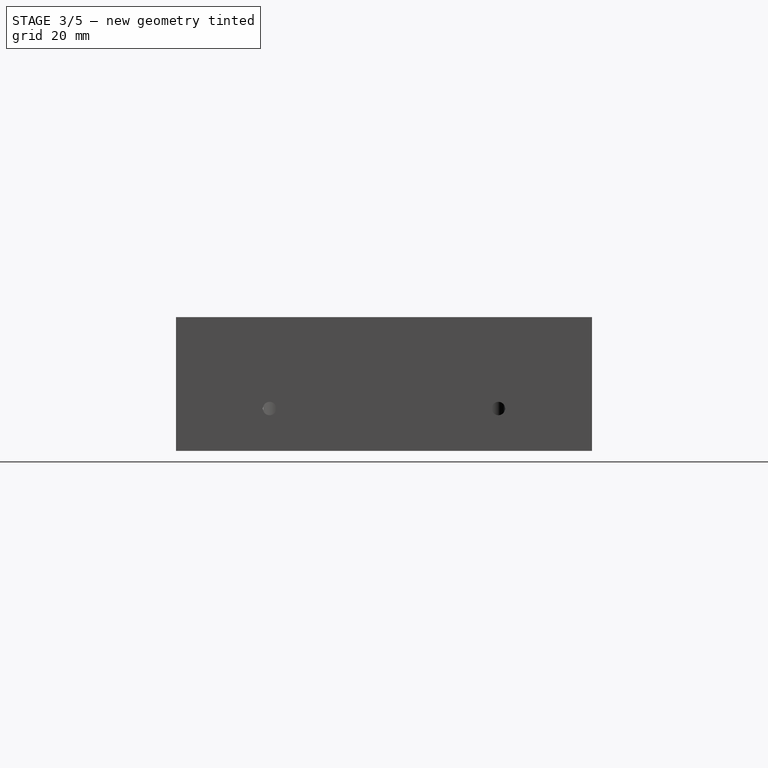
[diagram: stage 3 of 5 — right view after this stage's code; geometry added in this stage tinted green]
FEATURE [Sketcher::SketchObject] Sketch015  label="tuercas  derecha001"
  ExternalGeometry = -> [Sketch014]
  FullyConstrained = false
  MapMode = 5
  Placement = pos=(0,-38.67,0) rot=(0,0.707107,0.707107;3.14159rad)
  Support = -> [Pocket005]
  expr: Constraints[53] = <<tab>>.te
  sketch-geometry (21):
    g0: LineSegment StartX=2.98636 StartY=9.21426 StartZ=0 EndX=1.74064 EndY=11.9434 EndZ=0
    g1: LineSegment StartX=1.74064 StartY=11.9434 StartZ=0 EndX=-1.24572 EndY=12.2291 EndZ=0
    g2: LineSegment StartX=-1.24572 StartY=12.2291 StartZ=0 EndX=-2.98636 EndY=9.78574 EndZ=0
    g3: LineSegment StartX=-2.98636 StartY=9.78574 StartZ=0 EndX=-1.74064 EndY=7.05661 EndZ=0
    g4: LineSegment StartX=-1.74064 StartY=7.05661 StartZ=0 EndX=1.24572 EndY=6.77086 EndZ=0
    g5: LineSegment StartX=1.24572 StartY=6.77086 StartZ=0 EndX=2.98636 EndY=9.21426 EndZ=0
    g6: Circle CenterX=0 CenterY=9.5 CenterZ=0 NormalX=0 NormalY=0 NormalZ=1 AngleXU=0 Radius=3
    g7: LineSegment StartX=47.0864 StartY=7.55771 StartZ=0 EndX=47.6253 EndY=10.5089 EndZ=0
    g8: LineSegment StartX=47.6253 StartY=10.5089 StartZ=0 EndX=45.3389 EndY=12.4512 EndZ=0
    g9: LineSegment StartX=45.3389 StartY=12.4512 StartZ=0 EndX=42.5136 EndY=11.4423 EndZ=0
    g10: LineSegment StartX=42.5136 StartY=11.4423 StartZ=0 EndX=41.9747 EndY=8.49109 EndZ=0
    g11: LineSegment StartX=41.9747 StartY=8.49109 StartZ=0 EndX=44.2611 EndY=6.5488 EndZ=0
    g12: LineSegment StartX=44.2611 StartY=6.5488 StartZ=0 EndX=47.0864 EndY=7.55771 EndZ=0
    g13: Circle CenterX=44.8 CenterY=9.5 CenterZ=0 NormalX=0 NormalY=0 NormalZ=1 AngleXU=0 Radius=3
    g14: LineSegment StartX=-43.0234 StartY=7.0826 StartZ=0 EndX=-41.8182 EndY=9.82985 EndZ=0
    g15: LineSegment StartX=-41.8182 StartY=9.82985 StartZ=0 EndX=-43.5947 EndY=12.2472 EndZ=0
    g16: LineSegment StartX=-43.5947 StartY=12.2472 StartZ=0 EndX=-46.5766 EndY=11.9174 EndZ=0
    g17: LineSegment StartX=-46.5766 StartY=11.9174 StartZ=0 EndX=-47.7818 EndY=9.17015 EndZ=0
    g18: LineSegment StartX=-47.7818 StartY=9.17015 StartZ=0 EndX=-46.0053 EndY=6.75275 EndZ=0
    g19: LineSegment StartX=-46.0053 StartY=6.75275 StartZ=0 EndX=-43.0234 EndY=7.0826 EndZ=0
    g20: Circle CenterX=-44.8 CenterY=9.5 CenterZ=0 NormalX=0 NormalY=0 NormalZ=1 AngleXU=0 Radius=3
  constraints (45):
    c: Coincident(g0,g1)
    c: Coincident(g1,g2)
    c: Coincident(g2,g3)
    c: Coincident(g3,g4)
    c: Coincident(g4,g5)
    c: Coincident(g5,g0)
    c: Equal(g0, g1-g5) x5
    c: PointOnObject(g0,g6)
    c: PointOnObject(g1,g6)
    c: PointOnObject(g2,g6)
    c: PointOnObject(g3,g6)
    c: PointOnObject(g4,g6)
    c: PointOnObject(g5,g6)
    c: Coincident(g7,g8)
    c: Coincident(g8,g9)
    c: Coincident(g9,g10)
    c: Coincident(g10,g11)
    c: Coincident(g11,g12)
    c: Coincident(g12,g7)
    c: Equal(g7, g8-g12) x5
    c: PointOnObject(g7,g13)
    c: PointOnObject(g8,g13)
    c: PointOnObject(g9,g13)
    c: PointOnObject(g10,g13)
    c: PointOnObject(g11,g13)
    c: PointOnObject(g12,g13)
    c: Coincident(g14,g15)
    c: Coincident(g15,g16)
    c: Coincident(g16,g17)
    c: Coincident(g17,g18)
    c: Coincident(g18,g19)
    c: Coincident(g19,g14)
    c: Equal(g14, g15-g19) x5
    c: PointOnObject(g14,g20)
    c: PointOnObject(g15,g20)
    c: PointOnObject(g16,g20)
    c: PointOnObject(g17,g20)
    c: PointOnObject(g18,g20)
    c: PointOnObject(g19,g20)
    c: Equal(g20,g6)
    c: Equal(g6,g13)
    c: Radius(g13) = 3
    c: Coincident(g-4,g13)
    c: Coincident(g6,g-3)
    c: Coincident(g-5,g20)
FEATURE [PartDesign::Pocket] Pocket006  label="Tuercas  derecha"
  AllowMultiFace = false
  BaseFeature = -> Pocket005
  Length = 3
  Length2 = 100
  Profile = -> Sketch015
  Type = 0
  expr: Length = <<tab>>.te
FEATURE [Sketcher::SketchObject] Sketch016  label="Barra adelante001"
  ExternalGeometry = -> [Sketch006]
  FullyConstrained = false
  MapMode = 5
  Placement = pos=(-60.8,0,0) rot=(0.57735,0.57735,0.57735;2.0944rad)
  Support = -> [Pocket006]
  expr: Constraints[11] = <<tab>>.ep
  expr: Constraints[10] = <<tab>>.bd
  sketch-geometry (4):
    g0: LineSegment StartX=-31.67 StartY=13 StartZ=0 EndX=31.67 EndY=13 EndZ=0
    g1: LineSegment StartX=31.67 StartY=13 StartZ=0 EndX=31.67 EndY=5 EndZ=0
    g2: LineSegment StartX=31.67 StartY=5 StartZ=0 EndX=-31.67 EndY=5 EndZ=0
    g3: LineSegment StartX=-31.67 StartY=5 StartZ=0 EndX=-31.67 EndY=13 EndZ=0
  constraints (12):
    c: Coincident(g0,g1)
    c: Coincident(g1,g2)
    c: Coincident(g2,g3)
    c: Coincident(g3,g0)
    c: Horizontal(g0)
    c: Horizontal(g2)
    c: Vertical(g1)
    c: Vertical(g3)
    c: DistanceX(g-3,g2) = 0
    c: DistanceX(g1,g-4) = 0
    c: DistanceY(g3,g3) = 8
    c: DistanceY(g-3,g2) = 5
FEATURE [PartDesign::Pad] Pad006  label="Barra adelante"
  AllowMultiFace = false
  BaseFeature = -> Pocket006
  Direction = (1,1,1)
  Length = 3
  Length2 = 100
  Profile = -> Sketch016
  Type = 0
  expr: Length = <<tab>>.tb
FEATURE [Sketcher::SketchObject] Sketch017  label="agujeros Adelanta001"
  ExternalGeometry = -> [Sketch016]
  FullyConstrained = false
  MapMode = 5
  Placement = pos=(-57.8,0,0) rot=(0.57735,0.57735,0.57735;2.0944rad)
  Support = -> [Pad006]
  expr: Constraints[2] = <<tab>>.db
  expr: Constraints[1] = <<tab>>.ti
  sketch-geometry (2):
    g0: Circle CenterX=-25.67 CenterY=9.5 CenterZ=0 NormalX=0 NormalY=0 NormalZ=1 AngleXU=0 Radius=1.5
    g1: Circle CenterX=25.67 CenterY=9.5 CenterZ=0 NormalX=0 NormalY=0 NormalZ=1 AngleXU=0 Radius=1.5
  constraints (5):
    c: Equal(g1,g0)
    c: Radius(g0) = 1.5
    c: DistanceX(g-3,g0) = 6
    c: DistanceY(g-3,g0) = 4.5
    c: Symmetric(g1,g0,g-2)
FEATURE [PartDesign::Pocket] Pocket007  label="Agujeros Adelanta"
  AllowMultiFace = false
  BaseFeature = -> Pad006
  Length = 8
  Length2 = 100
  Profile = -> Sketch017
  Type = 0
  expr: Length = <<tab>>.ep + <<tab>>.tb
FEATURE [Sketcher::SketchObject] Sketch018  label="tuercas Adelante001"
  ExternalGeometry = -> [Sketch017]
  FullyConstrained = false
  MapMode = 5
  Placement = pos=(-57.8,0,0) rot=(0.57735,0.57735,0.57735;2.0944rad)
  Support = -> [Pocket007]
  expr: Constraints[35] = <<tab>>.te
  sketch-geometry (14):
    g0: LineSegment StartX=-24.1787 StartY=6.89693 StartZ=0 EndX=-22.67 EndY=9.48999 EndZ=0
    g1: LineSegment StartX=-22.67 StartY=9.48999 StartZ=0 EndX=-24.1613 EndY=12.0931 EndZ=0
    g2: LineSegment StartX=-24.1613 StartY=12.0931 StartZ=0 EndX=-27.1613 EndY=12.1031 EndZ=0
    g3: LineSegment StartX=-27.1613 StartY=12.1031 StartZ=0 EndX=-28.67 EndY=9.51001 EndZ=0
    g4: LineSegment StartX=-28.67 StartY=9.51001 StartZ=0 EndX=-27.1787 EndY=6.90694 EndZ=0
    g5: LineSegment StartX=-27.1787 StartY=6.90694 StartZ=0 EndX=-24.1787 EndY=6.89693 EndZ=0
    g6: Circle CenterX=-25.67 CenterY=9.5 CenterZ=0 NormalX=0 NormalY=0 NormalZ=1 AngleXU=0 Radius=3
    g7: LineSegment StartX=27.1871 StartY=6.91185 StartZ=0 EndX=28.6699 EndY=9.51973 EndZ=0
    g8: LineSegment StartX=28.6699 StartY=9.51973 StartZ=0 EndX=27.1529 EndY=12.1079 EndZ=0
    g9: LineSegment StartX=27.1529 StartY=12.1079 StartZ=0 EndX=24.1529 EndY=12.0882 EndZ=0
    g10: LineSegment StartX=24.1529 StartY=12.0882 StartZ=0 EndX=22.6701 EndY=9.48027 EndZ=0
    g11: LineSegment StartX=22.6701 StartY=9.48027 StartZ=0 EndX=24.1871 EndY=6.89211 EndZ=0
    g12: LineSegment StartX=24.1871 StartY=6.89211 StartZ=0 EndX=27.1871 EndY=6.91185 EndZ=0
    g13: Circle CenterX=25.67 CenterY=9.5 CenterZ=0 NormalX=0 NormalY=0 NormalZ=1 AngleXU=0 Radius=3
  constraints (30):
    c: Coincident(g0,g1)
    c: Coincident(g1,g2)
    c: Coincident(g2,g3)
    c: Coincident(g3,g4)
    c: Coincident(g4,g5)
    c: Coincident(g5,g0)
    c: Equal(g0, g1-g5) x5
    c: PointOnObject(g0,g6)
    c: PointOnObject(g1,g6)
    c: PointOnObject(g2,g6)
    c: PointOnObject(g3,g6)
    c: PointOnObject(g4,g6)
    c: PointOnObject(g5,g6)
    c: Coincident(g7,g8)
    c: Coincident(g8,g9)
    c: Coincident(g9,g10)
    c: Coincident(g10,g11)
    c: Coincident(g11,g12)
    c: Coincident(g12,g7)
    c: Equal(g7, g8-g12) x5
    c: PointOnObject(g7,g13)
    c: PointOnObject(g8,g13)
    c: PointOnObject(g9,g13)
    c: PointOnObject(g10,g13)
    c: PointOnObject(g11,g13)
    c: PointOnObject(g12,g13)
    c: Equal(g6,g13)
    c: Radius(g6) = 3
    c: Coincident(g6,g-3)
    c: Coincident(g13,g-4)
FEATURE [PartDesign::Pocket] Pocket008  label="tuercas Adelante"
  AllowMultiFace = false
  BaseFeature = -> Pocket007
  Length = 3
  Length2 = 100
  Profile = -> Sketch018
  Type = 0
  expr: Length = <<tab>>.tb
FEATURE [Sketcher::SketchObject] Sketch019  label="Barra Atras001"
  ExternalGeometry = -> [Sketch006]
  FullyConstrained = false
  MapMode = 5
  Placement = pos=(60.8,0,0) rot=(0.57735,-0.57735,-0.57735;2.0944rad)
  Support = -> [Pocket008]
  expr: Constraints[10] = <<tab>>.ep
  expr: Constraints[7] = <<tab>>.bd
  sketch-geometry (4):
    g0: LineSegment StartX=-31.67 StartY=13 StartZ=0 EndX=31.67 EndY=13 EndZ=0
    g1: LineSegment StartX=31.67 StartY=13 StartZ=0 EndX=31.67 EndY=5 EndZ=0
    g2: LineSegment StartX=31.67 StartY=5 StartZ=0 EndX=-31.67 EndY=5 EndZ=0
    g3: LineSegment StartX=-31.67 StartY=5 StartZ=0 EndX=-31.67 EndY=13 EndZ=0
  constraints (11):
    c: Coincident(g0,g1)
    c: Coincident(g1,g2)
    c: Coincident(g2,g3)
    c: Coincident(g3,g0)
    c: Horizontal(g2)
    c: Vertical(g1)
    c: Vertical(g3)
    c: DistanceY(g3,g3) = 8
    c: DistanceX(g-3,g2) = 0
    c: Symmetric(g0,g0,g-2)
    c: DistanceY(g-3,g2) = 5
FEATURE [PartDesign::Pad] Pad007  label="Barra Atras"
  AllowMultiFace = false
  BaseFeature = -> Pocket008
  Direction = (1,1,1)
  Length = 3
  Length2 = 100
  Profile = -> Sketch019
  Type = 0
  expr: Length = <<tab>>.tb
FEATURE [Sketcher::SketchObject] Sketch020  label="agujeros atras001"
  ExternalGeometry = -> [Sketch019]
  FullyConstrained = false
  MapMode = 5
  Placement = pos=(57.8,0,0) rot=(0.57735,-0.57735,-0.57735;2.0944rad)
  Support = -> [Pad007]
  expr: Constraints[3] = <<tab>>.ti
  expr: Constraints[2] = <<tab>>.db
  sketch-geometry (2):
    g0: Circle CenterX=-25.67 CenterY=9.5 CenterZ=0 NormalX=0 NormalY=0 NormalZ=1 AngleXU=0 Radius=1.5
    g1: Circle CenterX=25.67 CenterY=9.5 CenterZ=0 NormalX=0 NormalY=0 NormalZ=1 AngleXU=0 Radius=1.5
  constraints (5):
    c: Symmetric(g0,g1,g-2)
    c: DistanceY(g-3,g0) = 4.5
    c: DistanceX(g-3,g0) = 6
    c: Radius(g1) = 1.5
    c: Equal(g1,g0)
FEATURE [PartDesign::Pocket] Pocket009  label="Agujeros atras"
  AllowMultiFace = false
  BaseFeature = -> Pad007
  Length = 8
  Length2 = 100
  Profile = -> Sketch020
  Type = 0
  expr: Length = <<tab>>.tb + <<tab>>.ep
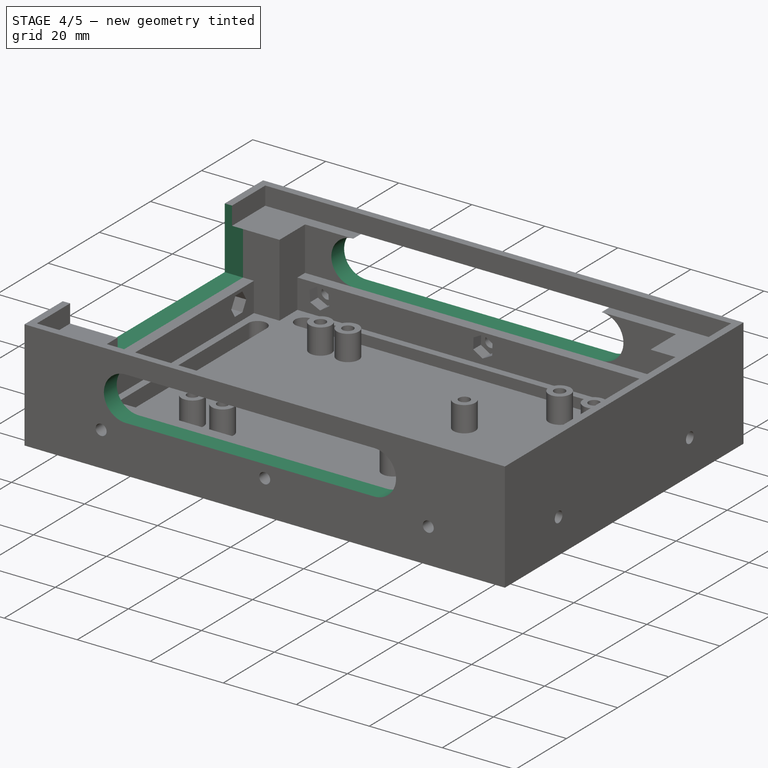
[diagram: stage 4 of 5 — iso view after this stage's code; geometry added in this stage tinted green]
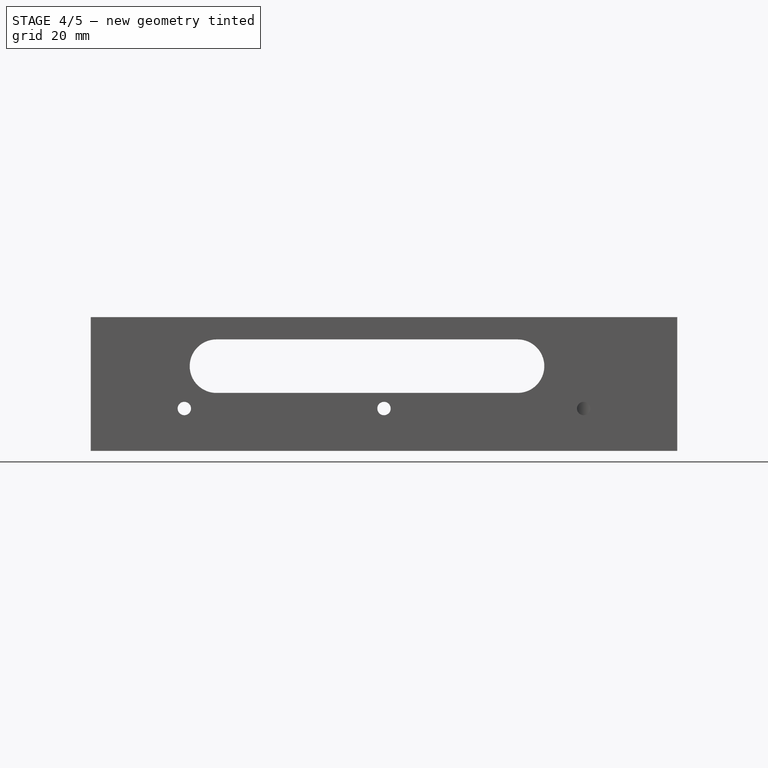
[diagram: stage 4 of 5 — front view after this stage's code; geometry added in this stage tinted green]
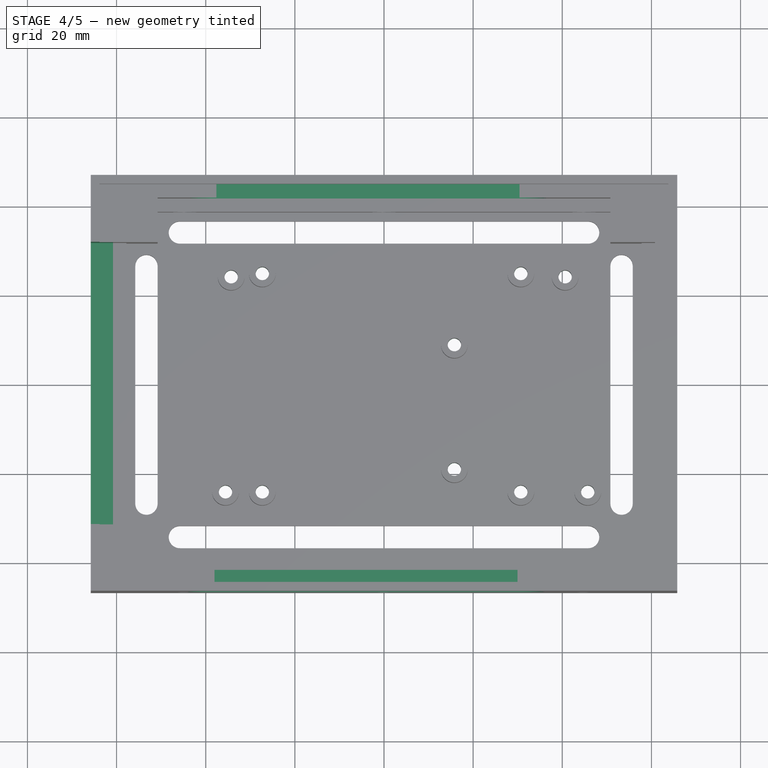
[diagram: stage 4 of 5 — top view after this stage's code; geometry added in this stage tinted green]
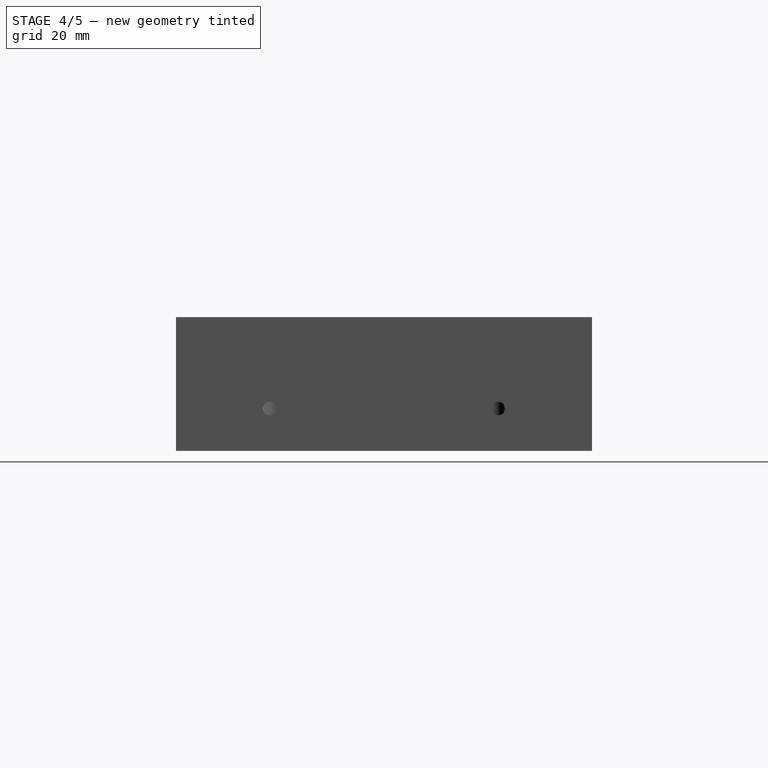
[diagram: stage 4 of 5 — right view after this stage's code; geometry added in this stage tinted green]
FEATURE [Sketcher::SketchObject] Sketch021  label="tuercas atras001"
  ExternalGeometry = -> [Sketch020]
  FullyConstrained = false
  MapMode = 5
  Placement = pos=(57.8,0,0) rot=(0.57735,-0.57735,-0.57735;2.0944rad)
  Support = -> [Pocket009]
  expr: Constraints[35] = <<tab>>.te
  sketch-geometry (14):
    g0: LineSegment StartX=-23.3575 StartY=7.58891 StartZ=0 EndX=-22.8587 EndY=10.5472 EndZ=0
    g1: LineSegment StartX=-22.8587 StartY=10.5472 StartZ=0 EndX=-25.1712 EndY=12.4582 EndZ=0
    g2: LineSegment StartX=-25.1712 StartY=12.4582 StartZ=0 EndX=-27.9825 EndY=11.4111 EndZ=0
    g3: LineSegment StartX=-27.9825 StartY=11.4111 StartZ=0 EndX=-28.4813 EndY=8.45285 EndZ=0
    g4: LineSegment StartX=-28.4813 StartY=8.45285 StartZ=0 EndX=-26.1688 EndY=6.54176 EndZ=0
    g5: LineSegment StartX=-26.1688 StartY=6.54176 StartZ=0 EndX=-23.3575 EndY=7.58891 EndZ=0
    g6: Circle CenterX=-25.67 CenterY=9.5 CenterZ=0 NormalX=0 NormalY=0 NormalZ=1 AngleXU=0 Radius=3
    g7: LineSegment StartX=27.0243 StartY=6.82309 StartZ=0 EndX=28.6654 EndY=9.33441 EndZ=0
    g8: LineSegment StartX=28.6654 StartY=9.33441 StartZ=0 EndX=27.3111 EndY=12.0113 EndZ=0
    g9: LineSegment StartX=27.3111 StartY=12.0113 StartZ=0 EndX=24.3157 EndY=12.1769 EndZ=0
    g10: LineSegment StartX=24.3157 StartY=12.1769 StartZ=0 EndX=22.6746 EndY=9.66559 EndZ=0
    g11: LineSegment StartX=22.6746 StartY=9.66559 StartZ=0 EndX=24.0289 EndY=6.98868 EndZ=0
    g12: LineSegment StartX=24.0289 StartY=6.98868 StartZ=0 EndX=27.0243 EndY=6.82309 EndZ=0
    g13: Circle CenterX=25.67 CenterY=9.5 CenterZ=0 NormalX=0 NormalY=0 NormalZ=1 AngleXU=0 Radius=3
  constraints (30):
    c: Coincident(g0,g1)
    c: Coincident(g1,g2)
    c: Coincident(g2,g3)
    c: Coincident(g3,g4)
    c: Coincident(g4,g5)
    c: Coincident(g5,g0)
    c: Equal(g0, g1-g5) x5
    c: PointOnObject(g0,g6)
    c: PointOnObject(g1,g6)
    c: PointOnObject(g2,g6)
    c: PointOnObject(g3,g6)
    c: PointOnObject(g4,g6)
    c: PointOnObject(g5,g6)
    c: Coincident(g7,g8)
    c: Coincident(g8,g9)
    c: Coincident(g9,g10)
    c: Coincident(g10,g11)
    c: Coincident(g11,g12)
    c: Coincident(g12,g7)
    c: Equal(g7, g8-g12) x5
    c: PointOnObject(g7,g13)
    c: PointOnObject(g8,g13)
    c: PointOnObject(g9,g13)
    c: PointOnObject(g10,g13)
    c: PointOnObject(g11,g13)
    c: PointOnObject(g12,g13)
    c: Equal(g13,g6)
    c: Radius(g6) = 3
    c: Coincident(g6,g-3)
    c: Coincident(g13,g-4)
FEATURE [PartDesign::Pocket] Pocket010  label="Tuercas atras"
  AllowMultiFace = false
  BaseFeature = -> Pocket009
  Length = 3
  Length2 = 100
  Profile = -> Sketch021
  Type = 0
  expr: Length = <<tab>>.tb
FEATURE [Sketcher::SketchObject] Sketch022  label="Salida USB y alimentación001"
  ExternalGeometry = -> [Sketch016,Sketch004]
  FullyConstrained = false
  MapMode = 5
  Placement = pos=(-60.8,0,0) rot=(0.57735,0.57735,0.57735;2.0944rad)
  Support = -> [Pocket010]
  sketch-geometry (4):
    g0: LineSegment StartX=-31.67 StartY=30 StartZ=0 EndX=31.67 EndY=30 EndZ=0
    g1: LineSegment StartX=31.67 StartY=30 StartZ=0 EndX=31.67 EndY=13 EndZ=0
    g2: LineSegment StartX=31.67 StartY=13 StartZ=0 EndX=-31.67 EndY=13 EndZ=0
    g3: LineSegment StartX=-31.67 StartY=13 StartZ=0 EndX=-31.67 EndY=30 EndZ=0
  constraints (10):
    c: Coincident(g0,g1)
    c: Coincident(g1,g2)
    c: Coincident(g2,g3)
    c: Coincident(g3,g0)
    c: Horizontal(g0)
    c: Vertical(g1)
    c: Vertical(g3)
    c: Coincident(g-3,g2)
    c: Symmetric(g2,g1,g-2)
    c: DistanceY(g0,g-4) = 0
FEATURE [PartDesign::Pocket] Pocket011  label="Salida USB y alimentación"
  AllowMultiFace = false
  BaseFeature = -> Pocket010
  Length = 5
  Length2 = 100
  Profile = -> Sketch022
  Type = 0
  expr: Length = <<tab>>.ep
FEATURE [Sketcher::SketchObject] Sketch023  label="Ventanas izquerda 001"
  ExternalGeometry = -> [Sketch013]
  FullyConstrained = false
  MapMode = 5
  Placement = pos=(0,-41.67,0) rot=(0,0.707107,0.707107;3.14159rad)
  Support = -> [Pocket011]
  expr: Constraints[6] = 12
  sketch-geometry (4):
    g0: ArcOfCircle CenterX=-29.9664 CenterY=19 CenterZ=0 NormalX=0 NormalY=0 NormalZ=1 AngleXU=0 Radius=6 StartAngle=1.5708 EndAngle=4.71239
    g1: ArcOfCircle CenterX=38.0336 CenterY=19 CenterZ=0 NormalX=0 NormalY=0 NormalZ=1 AngleXU=0 Radius=6 StartAngle=4.71239 EndAngle=7.85398
    g2: LineSegment StartX=-29.9664 StartY=13 StartZ=0 EndX=38.0336 EndY=13 EndZ=0
    g3: LineSegment StartX=-29.9664 StartY=25 StartZ=0 EndX=38.0336 EndY=25 EndZ=0
  constraints (9):
    c: Tangent(g0,g3) = 1.5708
    c: Tangent(g0,g2) = -1.5708
    c: Tangent(g2,g1) = -1.5708
    c: Tangent(g3,g1) = 1.5708
    c: Horizontal(g2)
    c: Equal(g0,g1)
    c: DistanceY(g1,g1) = 12
    c: DistanceX(g3,g3) = 68
    c: DistanceY(g-3,g1) = 0
FEATURE [PartDesign::Pocket] Pocket012  label="Ventanas izquerda "
  AllowMultiFace = false
  BaseFeature = -> Pocket011
  Length = 5
  Length2 = 100
  Profile = -> Sketch023
  Type = 0
  expr: Length = <<tab>>.ep
FEATURE [Sketcher::SketchObject] Sketch024  label="Ventana derecha "
  ExternalGeometry = -> [Sketch010]
  FullyConstrained = false
  MapMode = 5
  Placement = pos=(0,41.67,0) rot=(1,0,0;1.5708rad)
  Support = -> [Pocket012]
  sketch-geometry (4):
    g0: ArcOfCircle CenterX=-37.5949 CenterY=19 CenterZ=0 NormalX=0 NormalY=0 NormalZ=1 AngleXU=0 Radius=6 StartAngle=1.5708 EndAngle=4.71239
    g1: ArcOfCircle CenterX=30.4051 CenterY=19 CenterZ=0 NormalX=0 NormalY=0 NormalZ=1 AngleXU=0 Radius=6 StartAngle=4.71239 EndAngle=7.85398
    g2: LineSegment StartX=-37.5949 StartY=13 StartZ=0 EndX=30.4051 EndY=13 EndZ=0
    g3: LineSegment StartX=-37.5949 StartY=25 StartZ=0 EndX=30.4051 EndY=25 EndZ=0
  constraints (9):
    c: Tangent(g0,g3) = 1.5708
    c: Tangent(g0,g2) = -1.5708
    c: Tangent(g2,g1) = -1.5708
    c: Tangent(g3,g1) = 1.5708
    c: Horizontal(g2)
    c: Equal(g0,g1)
    c: DistanceY(g0,g0) = 12
    c: DistanceY(g-3,g1) = 0
    c: DistanceX(g3,g3) = 68
FEATURE [PartDesign::Pocket] Pocket013  label="Ventana derecha 001"
  AllowMultiFace = false
  BaseFeature = -> Pocket012
  Length = 5
  Length2 = 100
  Profile = -> Sketch024
  Type = 0
  expr: Length = <<tab>>.ep
FEATURE [Sketcher::SketchObject] Sketch025  label="Ranuras tornillos soporte001"
  ExternalGeometry = -> [Sketch008]
  FullyConstrained = false
  MapMode = 5
  Placement = pos=(0,0,0) rot=(1,0,0;3.14159rad)
  Support = -> [Pocket013]
  expr: Constraints[9] = <<tab>>.ti
  sketch-geometry (10):
    g0: Circle CenterX=-35.56 CenterY=24.13 CenterZ=0 NormalX=0 NormalY=0 NormalZ=1 AngleXU=0 Radius=1.5
    g1: Circle CenterX=-27.3 CenterY=24.13 CenterZ=0 NormalX=0 NormalY=0 NormalZ=1 AngleXU=0 Radius=1.5
    g2: Circle CenterX=-34.29 CenterY=-24.13 CenterZ=0 NormalX=0 NormalY=0 NormalZ=1 AngleXU=0 Radius=1.5
    g3: Circle CenterX=-27.3 CenterY=-24.87 CenterZ=0 NormalX=0 NormalY=0 NormalZ=1 AngleXU=0 Radius=1.5
    g4: Circle CenterX=15.79 CenterY=-8.89 CenterZ=0 NormalX=0 NormalY=0 NormalZ=1 AngleXU=0 Radius=1.5
    g5: Circle CenterX=15.79 CenterY=19.05 CenterZ=0 NormalX=0 NormalY=0 NormalZ=1 AngleXU=0 Radius=1.5
    g6: Circle CenterX=30.7 CenterY=24.13 CenterZ=0 NormalX=0 NormalY=0 NormalZ=1 AngleXU=0 Radius=1.5
    g7: Circle CenterX=45.72 CenterY=24.13 CenterZ=0 NormalX=0 NormalY=0 NormalZ=1 AngleXU=0 Radius=1.5
    g8: Circle CenterX=40.64 CenterY=-24.13 CenterZ=0 NormalX=0 NormalY=0 NormalZ=1 AngleXU=0 Radius=1.5
    g9: Circle CenterX=30.7 CenterY=-24.87 CenterZ=0 NormalX=0 NormalY=0 NormalZ=1 AngleXU=0 Radius=1.5
  constraints (20):
    c: Equal(g0,g1)
    c: Equal(g1,g2)
    c: Equal(g2,g3)
    c: Equal(g3,g4)
    c: Equal(g4,g5)
    c: Equal(g5,g6)
    c: Equal(g6,g7)
    c: Equal(g7,g9)
    c: Equal(g9,g8)
    c: Radius(g4) = 1.5
    c: Coincident(g0,g-3)
    c: Coincident(g1,g-4)
    c: Coincident(g2,g-12)
    c: Coincident(g3,g-11)
    c: Coincident(g4,g-8)
    c: Coincident(g-5,g5)
    c: Coincident(g-9,g9)
    c: Coincident(g8,g-10)
    c: Coincident(g6,g-6)
    c: Coincident(g7,g-7)
FEATURE [PartDesign::Pocket] Pocket014  label="Ranuras tornillos soporte"
  AllowMultiFace = false
  BaseFeature = -> Pocket013
  Length = 5
  Length2 = 100
  Profile = -> Sketch025
  Type = 0
  expr: Length = <<tab>>.ep
FEATURE [Sketcher::SketchObject] Sketch026  label="tuercas tornillos debajo001"
  ExternalGeometry = -> [Sketch008]
  FullyConstrained = false
  MapMode = 5
  Placement = pos=(0,0,0) rot=(1,0,0;3.14159rad)
  Support = -> [Pocket014]
  expr: Constraints[187] = <<tab>>.te
  expr: Constraints[169] = <<tab>>.te
  expr: Constraints[142] = <<tab>>.te
  sketch-geometry (70):
    g0: LineSegment StartX=-25.7398 StartY=21.5677 StartZ=0 EndX=-24.3008 EndY=24.2 EndZ=0
    g1: LineSegment StartX=-24.3008 StartY=24.2 StartZ=0 EndX=-25.8611 EndY=26.7624 EndZ=0
    g2: LineSegment StartX=-25.8611 StartY=26.7624 StartZ=0 EndX=-28.8602 EndY=26.6923 EndZ=0
    g3: LineSegment StartX=-28.8602 StartY=26.6923 StartZ=0 EndX=-30.2992 EndY=24.06 EndZ=0
    g4: LineSegment StartX=-30.2992 StartY=24.06 StartZ=0 EndX=-28.7389 EndY=21.4976 EndZ=0
    g5: LineSegment StartX=-28.7389 StartY=21.4976 StartZ=0 EndX=-25.7398 EndY=21.5677 EndZ=0
    g6: Circle CenterX=-27.3 CenterY=24.13 CenterZ=0 NormalX=0 NormalY=0 NormalZ=1 AngleXU=0 Radius=3
    g7: LineSegment StartX=18.39 StartY=17.5533 StartZ=0 EndX=18.3862 EndY=20.5533 EndZ=0
    g8: LineSegment StartX=18.3862 StartY=20.5533 StartZ=0 EndX=15.7862 EndY=22.05 EndZ=0
    g9: LineSegment StartX=15.7862 StartY=22.05 StartZ=0 EndX=13.19 EndY=20.5467 EndZ=0
    g10: LineSegment StartX=13.19 StartY=20.5467 StartZ=0 EndX=13.1938 EndY=17.5467 EndZ=0
    g11: LineSegment StartX=13.1938 StartY=17.5467 StartZ=0 EndX=15.7938 EndY=16.05 EndZ=0
    g12: LineSegment StartX=15.7938 StartY=16.05 StartZ=0 EndX=18.39 EndY=17.5533 EndZ=0
    g13: Circle CenterX=15.79 CenterY=19.05 CenterZ=0 NormalX=0 NormalY=0 NormalZ=1 AngleXU=0 Radius=3
    g14: LineSegment StartX=17.6994 StartY=-11.2039 StartZ=0 EndX=18.7486 EndY=-8.39342 EndZ=0
    g15: LineSegment StartX=18.7486 StartY=-8.39342 StartZ=0 EndX=16.8393 EndY=-6.07947 EndZ=0
    g16: LineSegment StartX=16.8393 StartY=-6.07947 StartZ=0 EndX=13.8806 EndY=-6.57606 EndZ=0
    g17: LineSegment StartX=13.8806 StartY=-6.57606 StartZ=0 EndX=12.8314 EndY=-9.38658 EndZ=0
    g18: LineSegment StartX=12.8314 StartY=-9.38658 StartZ=0 EndX=14.7407 EndY=-11.7005 EndZ=0
    g19: LineSegment StartX=14.7407 StartY=-11.7005 StartZ=0 EndX=17.6994 EndY=-11.2039 EndZ=0
    g20: Circle CenterX=15.79 CenterY=-8.89 CenterZ=0 NormalX=0 NormalY=0 NormalZ=1 AngleXU=0 Radius=3
    g21: LineSegment StartX=-24.4599 StartY=-25.8364 StartZ=0 EndX=-25.043 EndY=-22.8936 EndZ=0
    g22: LineSegment StartX=-25.043 StartY=-22.8936 StartZ=0 EndX=-27.8831 EndY=-21.9272 EndZ=0
    g23: LineSegment StartX=-27.8831 StartY=-21.9272 StartZ=0 EndX=-30.1401 EndY=-23.9036 EndZ=0
    g24: LineSegment StartX=-30.1401 StartY=-23.9036 StartZ=0 EndX=-29.557 EndY=-26.8464 EndZ=0
    g25: LineSegment StartX=-29.557 StartY=-26.8464 StartZ=0 EndX=-26.7169 EndY=-27.8128 EndZ=0
    g26: LineSegment StartX=-26.7169 StartY=-27.8128 StartZ=0 EndX=-24.4599 EndY=-25.8364 EndZ=0
    g27: Circle CenterX=-27.3 CenterY=-24.87 CenterZ=0 NormalX=0 NormalY=0 NormalZ=1 AngleXU=0 Radius=3
    g28: LineSegment StartX=-31.3018 StartY=-24.3964 StartZ=0 EndX=-32.5652 EndY=-21.6754 EndZ=0
    g29: LineSegment StartX=-32.5652 StartY=-21.6754 StartZ=0 EndX=-35.5534 EndY=-21.409 EndZ=0
    g30: LineSegment StartX=-35.5534 StartY=-21.409 StartZ=0 EndX=-37.2782 EndY=-23.8636 EndZ=0
    g31: LineSegment StartX=-37.2782 StartY=-23.8636 StartZ=0 EndX=-36.0148 EndY=-26.5846 EndZ=0
    g32: LineSegment StartX=-36.0148 StartY=-26.5846 StartZ=0 EndX=-33.0266 EndY=-26.851 EndZ=0
    g33: LineSegment StartX=-33.0266 StartY=-26.851 StartZ=0 EndX=-31.3018 EndY=-24.3964 EndZ=0
    g34: Circle CenterX=-34.29 CenterY=-24.13 CenterZ=0 NormalX=0 NormalY=0 NormalZ=1 AngleXU=0 Radius=3
    g35: LineSegment StartX=33.6816 StartY=24.4619 StartZ=0 EndX=31.9034 EndY=26.8781 EndZ=0
    g36: LineSegment StartX=31.9034 StartY=26.8781 StartZ=0 EndX=28.9218 EndY=26.5462 EndZ=0
    g37: LineSegment StartX=28.9218 StartY=26.5462 StartZ=0 EndX=27.7184 EndY=23.7981 EndZ=0
    g38: LineSegment StartX=27.7184 StartY=23.7981 StartZ=0 EndX=29.4966 EndY=21.3819 EndZ=0
    g39: LineSegment StartX=29.4966 StartY=21.3819 StartZ=0 EndX=32.4782 EndY=21.7138 EndZ=0
    g40: LineSegment StartX=32.4782 StartY=21.7138 StartZ=0 EndX=33.6816 EndY=24.4619 EndZ=0
    g41: Circle CenterX=30.7 CenterY=24.13 CenterZ=0 NormalX=0 NormalY=0 NormalZ=1 AngleXU=0 Radius=3
    g42: LineSegment StartX=47.2066 StartY=21.5242 StartZ=0 EndX=48.72 EndY=24.1145 EndZ=0
    g43: LineSegment StartX=48.72 StartY=24.1145 StartZ=0 EndX=47.2334 EndY=26.7203 EndZ=0
    g44: LineSegment StartX=47.2334 StartY=26.7203 StartZ=0 EndX=44.2334 EndY=26.7358 EndZ=0
    g45: LineSegment StartX=44.2334 StartY=26.7358 StartZ=0 EndX=42.72 EndY=24.1455 EndZ=0
    g46: LineSegment StartX=42.72 StartY=24.1455 StartZ=0 EndX=44.2066 EndY=21.5397 EndZ=0
    g47: LineSegment StartX=44.2066 StartY=21.5397 StartZ=0 EndX=47.2066 EndY=21.5242 EndZ=0
    g48: Circle CenterX=45.72 CenterY=24.13 CenterZ=0 NormalX=0 NormalY=0 NormalZ=1 AngleXU=0 Radius=3
    g49: LineSegment StartX=-32.6668 StartY=23.3365 StartZ=0 EndX=-33.4262 EndY=26.2388 EndZ=0
    g50: LineSegment StartX=-33.4262 StartY=26.2388 StartZ=0 EndX=-36.3194 EndY=27.0323 EndZ=0
    g51: LineSegment StartX=-36.3194 StartY=27.0323 StartZ=0 EndX=-38.4532 EndY=24.9235 EndZ=0
    g52: LineSegment StartX=-38.4532 StartY=24.9235 StartZ=0 EndX=-37.6938 EndY=22.0212 EndZ=0
    g53: LineSegment StartX=-37.6938 StartY=22.0212 StartZ=0 EndX=-34.8006 EndY=21.2277 EndZ=0
    g54: LineSegment StartX=-34.8006 StartY=21.2277 StartZ=0 EndX=-32.6668 EndY=23.3365 EndZ=0
    g55: Circle CenterX=-35.56 CenterY=24.13 CenterZ=0 NormalX=0 NormalY=0 NormalZ=1 AngleXU=0 Radius=3
    g56: LineSegment StartX=43.2983 StartY=-25.5204 StartZ=0 EndX=43.1733 EndY=-22.523 EndZ=0
    g57: LineSegment StartX=43.1733 StartY=-22.523 StartZ=0 EndX=40.515 EndY=-21.1326 EndZ=0
    g58: LineSegment StartX=40.515 StartY=-21.1326 StartZ=0 EndX=37.9817 EndY=-22.7396 EndZ=0
    g59: LineSegment StartX=37.9817 StartY=-22.7396 StartZ=0 EndX=38.1067 EndY=-25.737 EndZ=0
    g60: LineSegment StartX=38.1067 StartY=-25.737 StartZ=0 EndX=40.765 EndY=-27.1274 EndZ=0
    g61: LineSegment StartX=40.765 StartY=-27.1274 StartZ=0 EndX=43.2983 EndY=-25.5204 EndZ=0
    g62: Circle CenterX=40.64 CenterY=-24.13 CenterZ=0 NormalX=0 NormalY=0 NormalZ=1 AngleXU=0 Radius=3
    g63: LineSegment StartX=32.8359 StartY=-26.9767 StartZ=0 EndX=33.5924 EndY=-24.0736 EndZ=0
    g64: LineSegment StartX=33.5924 StartY=-24.0736 StartZ=0 EndX=31.4565 EndY=-21.9669 EndZ=0
    g65: LineSegment StartX=31.4565 StartY=-21.9669 StartZ=0 EndX=28.5641 EndY=-22.7633 EndZ=0
    g66: LineSegment StartX=28.5641 StartY=-22.7633 StartZ=0 EndX=27.8076 EndY=-25.6664 EndZ=0
    g67: LineSegment StartX=27.8076 StartY=-25.6664 StartZ=0 EndX=29.9435 EndY=-27.7731 EndZ=0
    g68: LineSegment StartX=29.9435 StartY=-27.7731 StartZ=0 EndX=32.8359 EndY=-26.9767 EndZ=0
    g69: Circle CenterX=30.7 CenterY=-24.87 CenterZ=0 NormalX=0 NormalY=0 NormalZ=1 AngleXU=0 Radius=3
  constraints (149):
    c: Coincident(g0,g1)
    c: Coincident(g1,g2)
    c: Coincident(g2,g3)
    c: Coincident(g3,g4)
    c: Coincident(g4,g5)
    c: Coincident(g5,g0)
    c: Equal(g0, g1-g5) x5
    c: PointOnObject(g0,g6)
    c: PointOnObject(g1,g6)
    c: PointOnObject(g2,g6)
    c: PointOnObject(g3,g6)
    c: PointOnObject(g4,g6)
    c: PointOnObject(g5,g6)
    c: Coincident(g7,g8)
    c: Coincident(g8,g9)
    c: Coincident(g9,g10)
    c: Coincident(g10,g11)
    c: Coincident(g11,g12)
    c: Coincident(g12,g7)
    c: Equal(g7, g8-g12) x5
    c: PointOnObject(g7,g13)
    c: PointOnObject(g8,g13)
    c: PointOnObject(g9,g13)
    c: PointOnObject(g10,g13)
    c: PointOnObject(g11,g13)
    c: PointOnObject(g12,g13)
    c: Coincident(g14,g15)
    c: Coincident(g15,g16)
    c: Coincident(g16,g17)
    c: Coincident(g17,g18)
    c: Coincident(g18,g19)
    c: Coincident(g19,g14)
    c: Equal(g14, g15-g19) x5
    c: PointOnObject(g14,g20)
    c: PointOnObject(g15,g20)
    c: PointOnObject(g16,g20)
    c: PointOnObject(g17,g20)
    c: PointOnObject(g18,g20)
    c: PointOnObject(g19,g20)
    c: Coincident(g21,g22)
    c: Coincident(g22,g23)
    c: Coincident(g23,g24)
    c: Coincident(g24,g25)
    c: Coincident(g25,g26)
    c: Coincident(g26,g21)
    c: Equal(g21, g22-g26) x5
    c: PointOnObject(g21,g27)
    c: PointOnObject(g22,g27)
    c: PointOnObject(g23,g27)
    c: PointOnObject(g24,g27)
    c: PointOnObject(g25,g27)
    c: PointOnObject(g26,g27)
    c: Coincident(g28,g29)
    c: Coincident(g29,g30)
    c: Coincident(g30,g31)
    c: Coincident(g31,g32)
    c: Coincident(g32,g33)
    c: Coincident(g33,g28)
    c: Equal(g28, g29-g33) x5
    c: PointOnObject(g28,g34)
    c: PointOnObject(g29,g34)
    c: PointOnObject(g30,g34)
    c: PointOnObject(g31,g34)
    c: PointOnObject(g32,g34)
    c: PointOnObject(g33,g34)
    c: Coincident(g35,g36)
    c: Coincident(g36,g37)
    c: Coincident(g37,g38)
    c: Coincident(g38,g39)
    c: Coincident(g39,g40)
    c: Coincident(g40,g35)
    c: Equal(g35, g36-g40) x5
    c: PointOnObject(g35,g41)
    c: PointOnObject(g36,g41)
    c: PointOnObject(g37,g41)
    c: PointOnObject(g38,g41)
    c: PointOnObject(g39,g41)
    c: PointOnObject(g40,g41)
    c: Coincident(g42,g43)
    c: Coincident(g43,g44)
    c: Coincident(g44,g45)
    c: Coincident(g45,g46)
    c: Coincident(g46,g47)
    c: Coincident(g47,g42)
    c: Equal(g42, g43-g47) x5
    c: PointOnObject(g42,g48)
    c: PointOnObject(g43,g48)
    c: PointOnObject(g44,g48)
    c: PointOnObject(g45,g48)
    c: PointOnObject(g46,g48)
    c: PointOnObject(g47,g48)
    c: Coincident(g49,g50)
    c: Coincident(g50,g51)
    c: Coincident(g51,g52)
    c: Coincident(g52,g53)
    c: Coincident(g53,g54)
    c: Coincident(g54,g49)
    c: Equal(g49, g50-g54) x5
    c: PointOnObject(g49,g55)
    c: PointOnObject(g50,g55)
    c: PointOnObject(g51,g55)
    c: PointOnObject(g52,g55)
    c: PointOnObject(g53,g55)
    c: PointOnObject(g54,g55)
    c: Equal(g6,g55)
    c: Equal(g55,g13)
    c: Equal(g13,g20)
    c: Equal(g20,g27)
    c: Equal(g27,g34)
    c: Equal(g41,g48)
    c: Radius(g55) = 3
    c: Coincident(g55,g-3)
    c: Coincident(g6,g-4)
    c: Coincident(g-10,g34)
    c: Coincident(g-9,g27)
    c: Coincident(g-8,g20)
    c: Coincident(g-5,g13)
    c: Coincident(g41,g-6)
    c: Coincident(g48,g-7)
    c: Coincident(g56,g57)
    c: Coincident(g57,g58)
    c: Coincident(g58,g59)
    c: Coincident(g59,g60)
    c: Coincident(g60,g61)
    c: Coincident(g61,g56)
    c: Equal(g56, g57-g61) x5
    c: PointOnObject(g56,g62)
    c: PointOnObject(g57,g62)
    c: PointOnObject(g58,g62)
    c: PointOnObject(g59,g62)
    c: PointOnObject(g60,g62)
    c: PointOnObject(g61,g62)
    c: Coincident(g62,g-11)
    c: Radius(g62) = 3
    c: Coincident(g63,g64)
    c: Coincident(g64,g65)
    c: Coincident(g65,g66)
    c: Coincident(g66,g67)
    c: Coincident(g67,g68)
    c: Coincident(g68,g63)
    c: Equal(g63, g64-g68) x5
    c: PointOnObject(g63,g69)
    c: PointOnObject(g64,g69)
    c: PointOnObject(g65,g69)
    c: PointOnObject(g66,g69)
    c: PointOnObject(g67,g69)
    c: PointOnObject(g68,g69)
    c: Radius(g69) = 3
    c: Coincident(g69,g-12)
FEATURE [PartDesign::Pocket] Pocket015  label="tuercas tornillos debajo"
  AllowMultiFace = false
  BaseFeature = -> Pocket014
  Length = 3
  Length2 = 100
  Profile = -> Sketch026
  Type = 0
  expr: Length = <<tab>>.tb
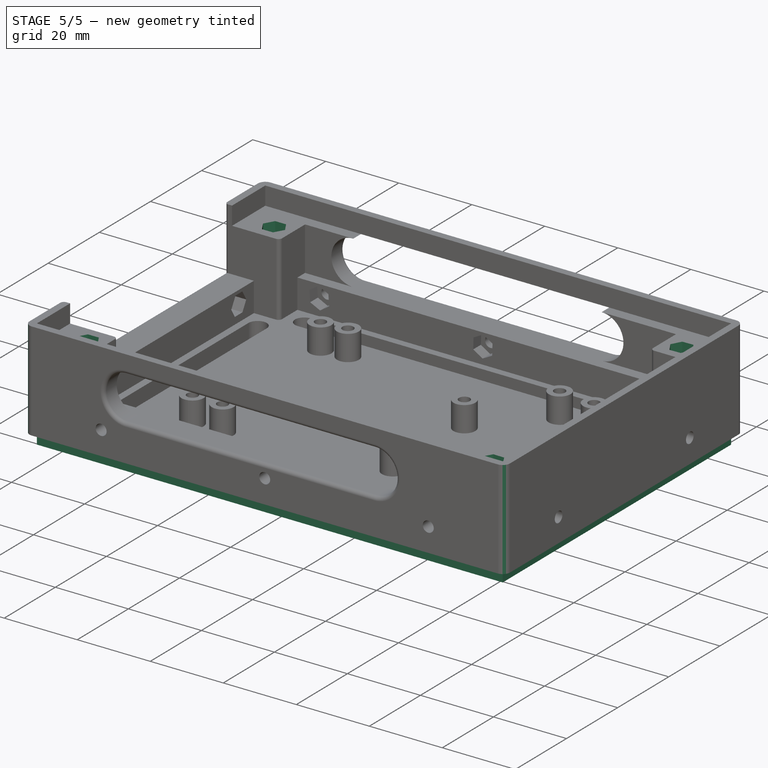
[diagram: stage 5 of 5 — iso view after this stage's code; geometry added in this stage tinted green]
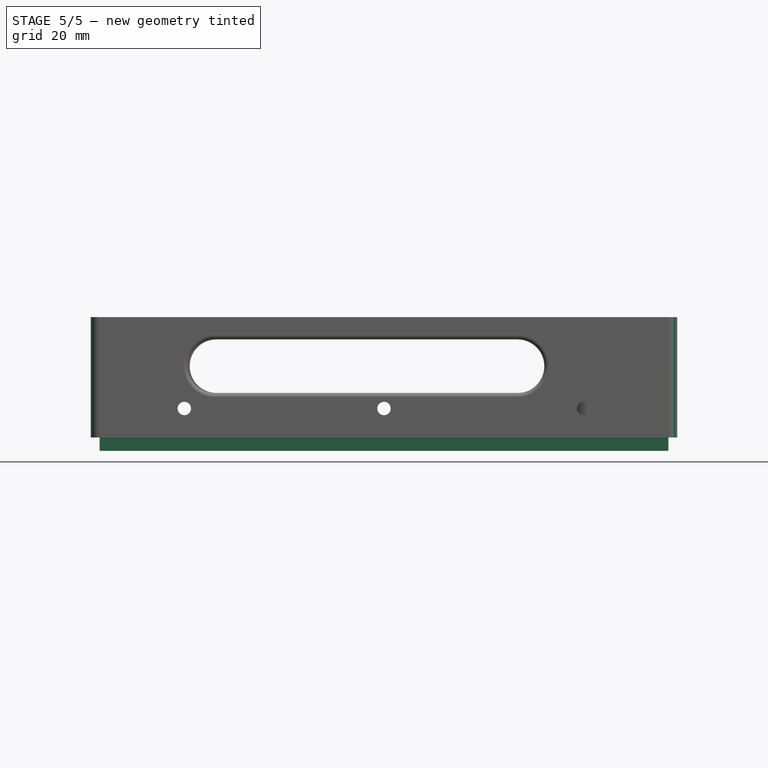
[diagram: stage 5 of 5 — front view after this stage's code; geometry added in this stage tinted green]
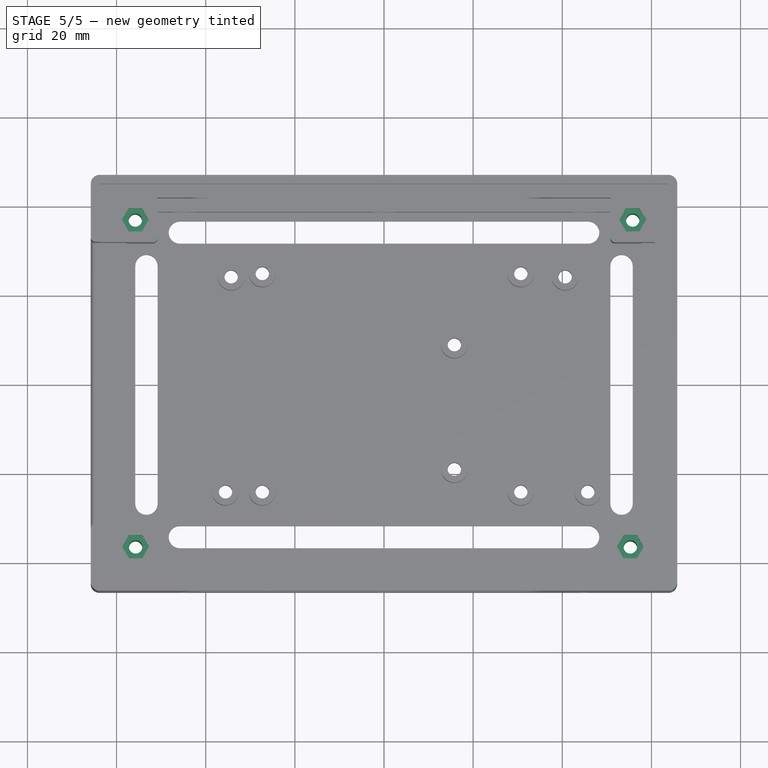
[diagram: stage 5 of 5 — top view after this stage's code; geometry added in this stage tinted green]
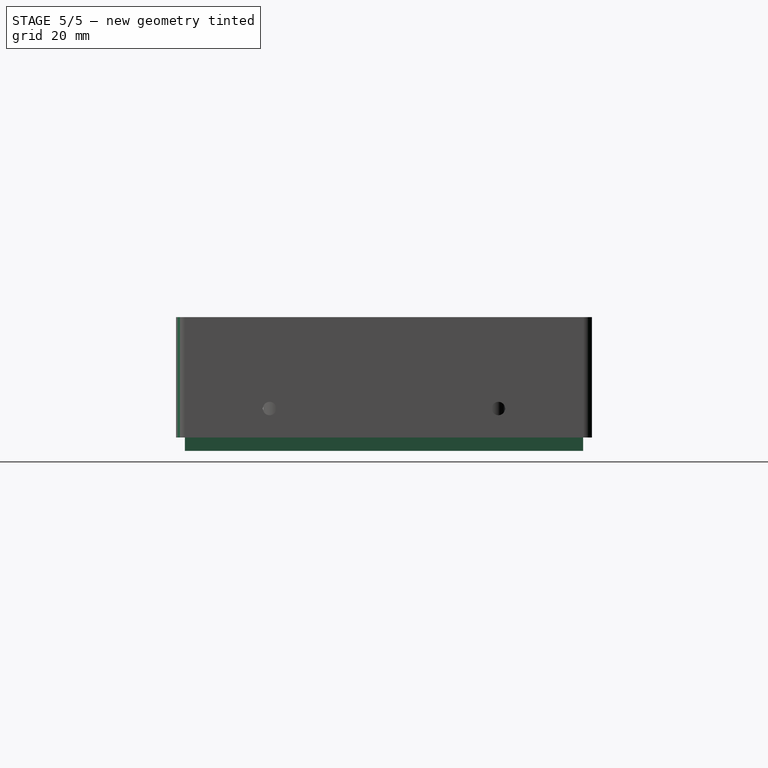
[diagram: stage 5 of 5 — right view after this stage's code; geometry added in this stage tinted green]
FEATURE [Sketcher::SketchObject] Sketch027  label="tuercas tornillos armaduras debajo001"
  ExternalGeometry = -> [Sketch009]
  FullyConstrained = false
  MapMode = 5
  Placement = pos=(0,0,0) rot=(1,0,0;3.14159rad)
  Support = -> [Pocket015]
  expr: Constraints[70] = <<tab>>.te
  sketch-geometry (28):
    g0: LineSegment StartX=-53.1928 StartY=35.0748 StartZ=0 EndX=-53.0818 EndY=38.0728 EndZ=0
    g1: LineSegment StartX=-53.0818 StartY=38.0728 StartZ=0 EndX=-55.6225 EndY=39.6679 EndZ=0
    g2: LineSegment StartX=-55.6225 StartY=39.6679 StartZ=0 EndX=-58.2743 EndY=38.2652 EndZ=0
    g3: LineSegment StartX=-58.2743 StartY=38.2652 StartZ=0 EndX=-58.3854 EndY=35.2672 EndZ=0
    g4: LineSegment StartX=-58.3854 StartY=35.2672 StartZ=0 EndX=-55.8447 EndY=33.6721 EndZ=0
    g5: LineSegment StartX=-55.8447 StartY=33.6721 StartZ=0 EndX=-53.1928 EndY=35.0748 EndZ=0
    g6: Circle CenterX=-55.7336 CenterY=36.67 CenterZ=0 NormalX=0 NormalY=0 NormalZ=1 AngleXU=0 Radius=3
    g7: LineSegment StartX=57.4592 StartY=34.6297 StartZ=0 EndX=58.1265 EndY=37.5546 EndZ=0
    g8: LineSegment StartX=58.1265 StartY=37.5546 StartZ=0 EndX=55.9271 EndY=39.5949 EndZ=0
    g9: LineSegment StartX=55.9271 StartY=39.5949 StartZ=0 EndX=53.0605 EndY=38.7103 EndZ=0
    g10: LineSegment StartX=53.0605 StartY=38.7103 StartZ=0 EndX=52.3932 EndY=35.7854 EndZ=0
    g11: LineSegment StartX=52.3932 StartY=35.7854 StartZ=0 EndX=54.5926 EndY=33.7451 EndZ=0
    g12: LineSegment StartX=54.5926 StartY=33.7451 StartZ=0 EndX=57.4592 EndY=34.6297 EndZ=0
    g13: Circle CenterX=55.2599 CenterY=36.67 CenterZ=0 NormalX=0 NormalY=0 NormalZ=1 AngleXU=0 Radius=3
    g14: LineSegment StartX=-53.2789 StartY=-38.2961 StartZ=0 EndX=-53.1312 EndY=-35.2997 EndZ=0
    g15: LineSegment StartX=-53.1312 StartY=-35.2997 StartZ=0 EndX=-55.6523 EndY=-33.6736 EndZ=0
    g16: LineSegment StartX=-55.6523 StartY=-33.6736 StartZ=0 EndX=-58.3211 EndY=-35.0439 EndZ=0
    g17: LineSegment StartX=-58.3211 StartY=-35.0439 StartZ=0 EndX=-58.4688 EndY=-38.0403 EndZ=0
    g18: LineSegment StartX=-58.4688 StartY=-38.0403 StartZ=0 EndX=-55.9477 EndY=-39.6664 EndZ=0
    g19: LineSegment StartX=-55.9477 StartY=-39.6664 StartZ=0 EndX=-53.2789 EndY=-38.2961 EndZ=0
    g20: Circle CenterX=-55.8 CenterY=-36.67 CenterZ=0 NormalX=0 NormalY=0 NormalZ=1 AngleXU=0 Radius=3
    g21: LineSegment StartX=58.4942 StartY=-37.9896 StartZ=0 EndX=58.2899 EndY=-34.9966 EndZ=0
    g22: LineSegment StartX=58.2899 StartY=-34.9966 StartZ=0 EndX=55.5958 EndY=-33.677 EndZ=0
    g23: LineSegment StartX=55.5958 StartY=-33.677 StartZ=0 EndX=53.1058 EndY=-35.3504 EndZ=0
    g24: LineSegment StartX=53.1058 StartY=-35.3504 StartZ=0 EndX=53.3101 EndY=-38.3434 EndZ=0
    g25: LineSegment StartX=53.3101 StartY=-38.3434 StartZ=0 EndX=56.0042 EndY=-39.663 EndZ=0
    g26: LineSegment StartX=56.0042 StartY=-39.663 StartZ=0 EndX=58.4942 EndY=-37.9896 EndZ=0
    g27: Circle CenterX=55.8 CenterY=-36.67 CenterZ=0 NormalX=0 NormalY=0 NormalZ=1 AngleXU=0 Radius=3
  constraints (55):
    c: Coincident(g0,g1)
    c: Coincident(g1,g2)
    c: Coincident(g2,g3)
    c: Coincident(g3,g4)
    c: Coincident(g4,g5)
    c: Coincident(g5,g0)
    c: Equal(g0, g1-g5) x5
    c: PointOnObject(g0,g6)
    c: PointOnObject(g1,g6)
    c: PointOnObject(g2,g6)
    c: PointOnObject(g3,g6)
    c: PointOnObject(g4,g6)
    c: PointOnObject(g5,g6)
    c: Coincident(g7,g8)
    c: Coincident(g8,g9)
    c: Coincident(g9,g10)
    c: Coincident(g10,g11)
    c: Coincident(g11,g12)
    c: Coincident(g12,g7)
    c: Equal(g7, g8-g12) x5
    c: PointOnObject(g7,g13)
    c: PointOnObject(g8,g13)
    c: PointOnObject(g9,g13)
    c: PointOnObject(g10,g13)
    c: PointOnObject(g11,g13)
    c: PointOnObject(g12,g13)
    c: Coincident(g14,g15)
    c: Coincident(g15,g16)
    c: Coincident(g16,g17)
    c: Coincident(g17,g18)
    c: Coincident(g18,g19)
    c: Coincident(g19,g14)
    c: Equal(g14, g15-g19) x5
    c: PointOnObject(g14,g20)
    c: PointOnObject(g15,g20)
    c: PointOnObject(g16,g20)
    c: PointOnObject(g17,g20)
    c: PointOnObject(g18,g20)
    c: PointOnObject(g19,g20)
    c: Equal(g20,g6)
    c: Equal(g6,g13)
    c: Coincident(g21,g22)
    c: Coincident(g22,g23)
    c: Coincident(g23,g24)
    c: Coincident(g24,g25)
    c: Coincident(g25,g26)
    c: Coincident(g26,g21)
    c: Equal(g21, g22-g26) x5
    c: PointOnObject(g21,g27)
    c: PointOnObject(g22,g27)
    c: PointOnObject(g23,g27)
    c: PointOnObject(g24,g27)
    c: PointOnObject(g25,g27)
    c: PointOnObject(g26,g27)
    c: Radius(g27) = 3
FEATURE [PartDesign::Pocket] Pocket016  label="tuercas tornillos armaduras debajo"
  AllowMultiFace = false
  BaseFeature = -> Pocket015
  Length = 3
  Length2 = 100
  Profile = -> Sketch027
  Type = 0
  expr: Length = <<tab>>.tb
FEATURE [Sketcher::SketchObject] Sketch028  label="agujeros debajo tornillos armaduras001"
  ExternalGeometry = -> [Sketch009]
  FullyConstrained = false
  MapMode = 5
  Placement = pos=(0,0,0) rot=(1,0,0;3.14159rad)
  Support = -> [Pocket016]
  expr: Constraints[3] = <<tab>>.ti
  expr: Constraints[2] = <<tab>>.ti
  expr: Constraints[1] = <<tab>>.ti
  expr: Constraints[0] = <<tab>>.ti
  sketch-geometry (4):
    g0: Circle CenterX=-55.8 CenterY=-36.67 CenterZ=0 NormalX=0 NormalY=0 NormalZ=1 AngleXU=0 Radius=1.5
    g1: Circle CenterX=55.8 CenterY=-36.67 CenterZ=0 NormalX=0 NormalY=0 NormalZ=1 AngleXU=0 Radius=1.5
    g2: Circle CenterX=55.2599 CenterY=36.67 CenterZ=0 NormalX=0 NormalY=0 NormalZ=1 AngleXU=0 Radius=1.5
    g3: Circle CenterX=-55.7336 CenterY=36.67 CenterZ=0 NormalX=0 NormalY=0 NormalZ=1 AngleXU=0 Radius=1.5
  constraints (4):
    c: Radius(g0) = 1.5
    c: Radius(g1) = 1.5
    c: Radius(g2) = 1.5
    c: Radius(g3) = 1.5
FEATURE [PartDesign::Pocket] Pocket017  label="agujeros debajo tornillos armaduras"
  AllowMultiFace = false
  BaseFeature = -> Pocket016
  Length = 25
  Length2 = 100
  Profile = -> Sketch028
  Type = 0
  expr: Length = <<tab>>.bz - <<tab>>.ep
FEATURE [Sketcher::SketchObject] Sketch029  label="tuercas de tornillos armaduras ariba001"
  ExternalGeometry = -> [Sketch009]
  FullyConstrained = false
  MapMode = 5
  Placement = pos=(0,0,25) rot=(0,0,1;0rad)
  Support = -> [Pocket017]
  expr: Constraints[71] = <<tab>>.te
  expr: Constraints[70] = <<tab>>.te
  expr: Constraints[52] = <<tab>>.te
  sketch-geometry (28):
    g0: LineSegment StartX=57.3721 StartY=34.1149 StartZ=0 EndX=58.7988 EndY=36.7539 EndZ=0
    g1: LineSegment StartX=58.7988 StartY=36.7539 StartZ=0 EndX=57.2267 EndY=39.309 EndZ=0
    g2: LineSegment StartX=57.2267 StartY=39.309 StartZ=0 EndX=54.2279 EndY=39.2251 EndZ=0
    g3: LineSegment StartX=54.2279 StartY=39.2251 StartZ=0 EndX=52.8012 EndY=36.5861 EndZ=0
    g4: LineSegment StartX=52.8012 StartY=36.5861 StartZ=0 EndX=54.3733 EndY=34.031 EndZ=0
    g5: LineSegment StartX=54.3733 StartY=34.031 StartZ=0 EndX=57.3721 EndY=34.1149 EndZ=0
    g6: Circle CenterX=55.8 CenterY=36.67 CenterZ=0 NormalX=0 NormalY=0 NormalZ=1 AngleXU=0 Radius=3
    g7: LineSegment StartX=56.7239 StartY=-39.2885 StartZ=0 EndX=58.2596 EndY=-36.7114 EndZ=0
    g8: LineSegment StartX=58.2596 StartY=-36.7114 StartZ=0 EndX=56.7956 EndY=-34.0929 EndZ=0
    g9: LineSegment StartX=56.7956 StartY=-34.0929 StartZ=0 EndX=53.7959 EndY=-34.0515 EndZ=0
    g10: LineSegment StartX=53.7959 StartY=-34.0515 StartZ=0 EndX=52.2601 EndY=-36.6286 EndZ=0
    g11: LineSegment StartX=52.2601 StartY=-36.6286 StartZ=0 EndX=53.7241 EndY=-39.2471 EndZ=0
    g12: LineSegment StartX=53.7241 StartY=-39.2471 StartZ=0 EndX=56.7239 EndY=-39.2885 EndZ=0
    g13: Circle CenterX=55.2599 CenterY=-36.67 CenterZ=0 NormalX=0 NormalY=0 NormalZ=1 AngleXU=0 Radius=3
    g14: LineSegment StartX=-52.8 StartY=36.6862 StartZ=0 EndX=-54.3141 EndY=39.2762 EndZ=0
    g15: LineSegment StartX=-54.3141 StartY=39.2762 StartZ=0 EndX=-57.314 EndY=39.2599 EndZ=0
    g16: LineSegment StartX=-57.314 StartY=39.2599 StartZ=0 EndX=-58.8 EndY=36.6538 EndZ=0
    g17: LineSegment StartX=-58.8 StartY=36.6538 StartZ=0 EndX=-57.2859 EndY=34.0638 EndZ=0
    g18: LineSegment StartX=-57.2859 StartY=34.0638 StartZ=0 EndX=-54.286 EndY=34.0801 EndZ=0
    g19: LineSegment StartX=-54.286 StartY=34.0801 StartZ=0 EndX=-52.8 EndY=36.6862 EndZ=0
    g20: Circle CenterX=-55.8 CenterY=36.67 CenterZ=0 NormalX=0 NormalY=0 NormalZ=1 AngleXU=0 Radius=3
    g21: LineSegment StartX=-54.2148 StartY=-39.2571 StartZ=0 EndX=-52.7337 EndY=-36.6482 EndZ=0
    g22: LineSegment StartX=-52.7337 StartY=-36.6482 StartZ=0 EndX=-54.2525 EndY=-34.0611 EndZ=0
    g23: LineSegment StartX=-54.2525 StartY=-34.0611 StartZ=0 EndX=-57.2524 EndY=-34.0829 EndZ=0
    g24: LineSegment StartX=-57.2524 StartY=-34.0829 StartZ=0 EndX=-58.7335 EndY=-36.6918 EndZ=0
    g25: LineSegment StartX=-58.7335 StartY=-36.6918 StartZ=0 EndX=-57.2147 EndY=-39.2789 EndZ=0
    g26: LineSegment StartX=-57.2147 StartY=-39.2789 StartZ=0 EndX=-54.2148 EndY=-39.2571 EndZ=0
    g27: Circle CenterX=-55.7336 CenterY=-36.67 CenterZ=0 NormalX=0 NormalY=0 NormalZ=1 AngleXU=0 Radius=3
  constraints (56):
    c: Coincident(g0,g1)
    c: Coincident(g1,g2)
    c: Coincident(g2,g3)
    c: Coincident(g3,g4)
    c: Coincident(g4,g5)
    c: Coincident(g5,g0)
    c: Equal(g0, g1-g5) x5
    c: PointOnObject(g0,g6)
    c: PointOnObject(g1,g6)
    c: PointOnObject(g2,g6)
    c: PointOnObject(g3,g6)
    c: PointOnObject(g4,g6)
    c: PointOnObject(g5,g6)
    c: Coincident(g7,g8)
    c: Coincident(g8,g9)
    c: Coincident(g9,g10)
    c: Coincident(g10,g11)
    c: Coincident(g11,g12)
    c: Coincident(g12,g7)
    c: Equal(g7, g8-g12) x5
    c: PointOnObject(g7,g13)
    c: PointOnObject(g8,g13)
    c: PointOnObject(g9,g13)
    c: PointOnObject(g10,g13)
    c: PointOnObject(g11,g13)
    c: PointOnObject(g12,g13)
    c: Equal(g6,g13)
    c: Coincident(g14,g15)
    c: Coincident(g15,g16)
    c: Coincident(g16,g17)
    c: Coincident(g17,g18)
    c: Coincident(g18,g19)
    c: Coincident(g19,g14)
    c: Equal(g14, g15-g19) x5
    c: PointOnObject(g14,g20)
    c: PointOnObject(g15,g20)
    c: PointOnObject(g16,g20)
    c: PointOnObject(g17,g20)
    c: PointOnObject(g18,g20)
    c: PointOnObject(g19,g20)
    c: Radius(g20) = 3
    c: Coincident(g21,g22)
    c: Coincident(g22,g23)
    c: Coincident(g23,g24)
    c: Coincident(g24,g25)
    c: Coincident(g25,g26)
    c: Coincident(g26,g21)
    c: Equal(g21, g22-g26) x5
    c: PointOnObject(g21,g27)
    c: PointOnObject(g22,g27)
    c: PointOnObject(g23,g27)
    c: PointOnObject(g24,g27)
    c: PointOnObject(g25,g27)
    c: PointOnObject(g26,g27)
    c: Radius(g27) = 3
    c: Radius(g13) = 3
FEATURE [PartDesign::Pocket] Pocket018  label="tuercas de tornillos armaduras ariba"
  AllowMultiFace = false
  BaseFeature = -> Pocket017
  Length = 3
  Length2 = 100
  Profile = -> Sketch029
  Type = 0
  expr: Length = <<tab>>.tb
FEATURE [Sketcher::SketchObject] Sketch030  label="Bordes de la base inferior002"
  ExternalGeometry = -> [Sketch003]
  FullyConstrained = false
  MapMode = 5
  Placement = pos=(0,0,0) rot=(1,0,0;3.14159rad)
  Support = -> [Pocket018]
  expr: Constraints[24] = <<tab>>.epc
  expr: Constraints[9] = <<tab>>.epc
  expr: Constraints[23] = <<tab>>.epc
  expr: Constraints[18] = <<tab>>.epc
  sketch-geometry (10):
    g0: LineSegment StartX=65.8 StartY=46.67 StartZ=0 EndX=-65.8 EndY=46.67 EndZ=0
    g1: LineSegment StartX=-65.8 StartY=46.67 StartZ=0 EndX=-65.8 EndY=44.67 EndZ=0
    g2: LineSegment StartX=-65.8 StartY=44.67 StartZ=0 EndX=65.8 EndY=44.67 EndZ=0
    g3: LineSegment StartX=65.8 StartY=44.67 StartZ=0 EndX=65.8 EndY=46.67 EndZ=0
    g4: LineSegment StartX=-65.8 StartY=-44.67 StartZ=0 EndX=65.8 EndY=-44.67 EndZ=0
    g5: LineSegment StartX=65.8 StartY=-44.67 StartZ=0 EndX=65.8 EndY=-46.67 EndZ=0
    g6: LineSegment StartX=65.8 StartY=-46.67 StartZ=0 EndX=-65.8 EndY=-46.67 EndZ=0
    g7: LineSegment StartX=-65.8 StartY=-46.67 StartZ=0 EndX=-65.8 EndY=-44.67 EndZ=0
    g8: LineSegment StartX=67.171 StartY=44.67 StartZ=0 EndX=69.171 EndY=44.67 EndZ=0
    g9: LineSegment StartX=-65.8 StartY=44.67 StartZ=0 EndX=-63.8 EndY=44.67 EndZ=0
  constraints (25):
    c: Coincident(g0,g1)
    c: Coincident(g1,g2)
    c: Coincident(g2,g3)
    c: Coincident(g3,g0)
    c: Horizontal(g0)
    c: Vertical(g1)
    c: Vertical(g3)
    c: Equal(g0,g-4)
    c: Symmetric(g2,g1,g-2)
    c: DistanceY(g3,g3) = 2
    c: DistanceY(g0,g-4) = 0
    c: Coincident(g4,g5)
    c: Coincident(g5,g6)
    c: Coincident(g6,g7)
    c: Coincident(g7,g4)
    c: Horizontal(g6)
    c: Vertical(g5)
    c: Symmetric(g4,g4,g-2)
    c: DistanceY(g6,g4) = 2
    c: Equal(g-3,g6)
    c: Coincident(g6,g-3)
    c: Horizontal(g8)
    c: Horizontal(g9)
    c: DistanceX(g8,g8) = 2
    c: DistanceX(g9,g9) = 2
FEATURE [PartDesign::Pocket] Pocket019  label="Bordes de la base inferior"
  AllowMultiFace = false
  BaseFeature = -> Pocket018
  Length = 3
  Length2 = 100
  Profile = -> Sketch030
  Type = 0
  expr: Length = <<tab>>.tb
FEATURE [Sketcher::SketchObject] Sketch031  label="Bordes de la base inferior003"
  ExternalGeometry = -> [Sketch005]
  FullyConstrained = false
  MapMode = 5
  Placement = pos=(0,0,0) rot=(1,0,0;3.14159rad)
  Support = -> [Pocket019]
  sketch-geometry (8):
    g0: LineSegment StartX=-65.8 StartY=44.67 StartZ=0 EndX=-63.8 EndY=44.67 EndZ=0
    g1: LineSegment StartX=-63.8 StartY=44.67 StartZ=0 EndX=-63.8 EndY=-44.67 EndZ=0
    g2: LineSegment StartX=-63.8 StartY=-44.67 StartZ=0 EndX=-65.8 EndY=-44.67 EndZ=0
    g3: LineSegment StartX=-65.8 StartY=-44.67 StartZ=0 EndX=-65.8 EndY=44.67 EndZ=0
    g4: LineSegment StartX=63.8 StartY=44.67 StartZ=0 EndX=65.8 EndY=44.67 EndZ=0
    g5: LineSegment StartX=65.8 StartY=44.67 StartZ=0 EndX=65.8 EndY=-44.67 EndZ=0
    g6: LineSegment StartX=65.8 StartY=-44.67 StartZ=0 EndX=63.8 EndY=-44.67 EndZ=0
    g7: LineSegment StartX=63.8 StartY=-44.67 StartZ=0 EndX=63.8 EndY=44.67 EndZ=0
  constraints (20):
    c: Coincident(g0,g1)
    c: Coincident(g1,g2)
    c: Coincident(g2,g3)
    c: Coincident(g3,g0)
    c: Horizontal(g0)
    c: Horizontal(g2)
    c: Vertical(g1)
    c: DistanceX(g0,g0) = 2
    c: Coincident(g0,g-3)
    c: Symmetric(g0,g2,g-1)
    c: Coincident(g4,g5)
    c: Coincident(g5,g6)
    c: Coincident(g6,g7)
    c: Coincident(g7,g4)
    c: Horizontal(g4)
    c: Horizontal(g6)
    c: Vertical(g5)
    c: Vertical(g7)
    c: DistanceX(g4,g4) = 2
    c: Coincident(g-4,g4)
FEATURE [PartDesign::Pocket] Pocket020  label="Bordes de la base inferior001"
  AllowMultiFace = false
  BaseFeature = -> Pocket019
  Length = 3
  Length2 = 100
  Profile = -> Sketch031
  Type = 0
  expr: Length = <<tab>>.tb
FEATURE [PartDesign::Body] Body  label="base"
  Group = -> [Sketch,Sketch001,Sketch002,Sketch003,Pad,Sketch004,Pocket,Sketch005,Pocket001,Sketch006,Pad001,Sketch007,Pocket002,Sketch008,Pad002,Sketch009,Pad003,Sketch010,Pad004,Sketch011,Pocket003,Sketch012,Pocket004,Sketch013,Pad005,Sketch014,Pocket005,Sketch015,Pocket006,Sketch016,Pad006,Sketch017,Pocket007,Sketch018,Pocket008,Sketch019,Pad007,Sketch020,Pocket009,Sketch021,Pocket010,Sketch022,Pocket011,+18 more]
  Origin = -> Origin
  Tip = -> Pocket020
FEATURE [Part::Fillet] Fillet
  Base = -> Pocket020
  Edges = 35 edges: [Edge2 r=2,Edge4 r=2,Edge8 r=1,Edge9 r=1,Edge10 r=1,Edge11 r=1,Edge19 r=2,Edge21 r=1,Edge22 r=1,Edge23 r=1,Edge37 r=2,Edge69 r=1,Edge70 r=1,Edge71 r=1,Edge72 r=1,Edge191 r=1,Edge192 r=1,Edge193 r=1,Edge194 r=1,Edge216 r=1,Edge217 r=1,Edge218 r=1,Edge219 r=1,Edge224 r=1,Edge225 r=1,Edge226 r=1,Edge227 r=1,Edge232 r=1,Edge233 r=1,Edge234 r=1,Edge235 r=1,Edge263 r=1,Edge270 r=1,Edge344 r=1,Edge601 r=1]
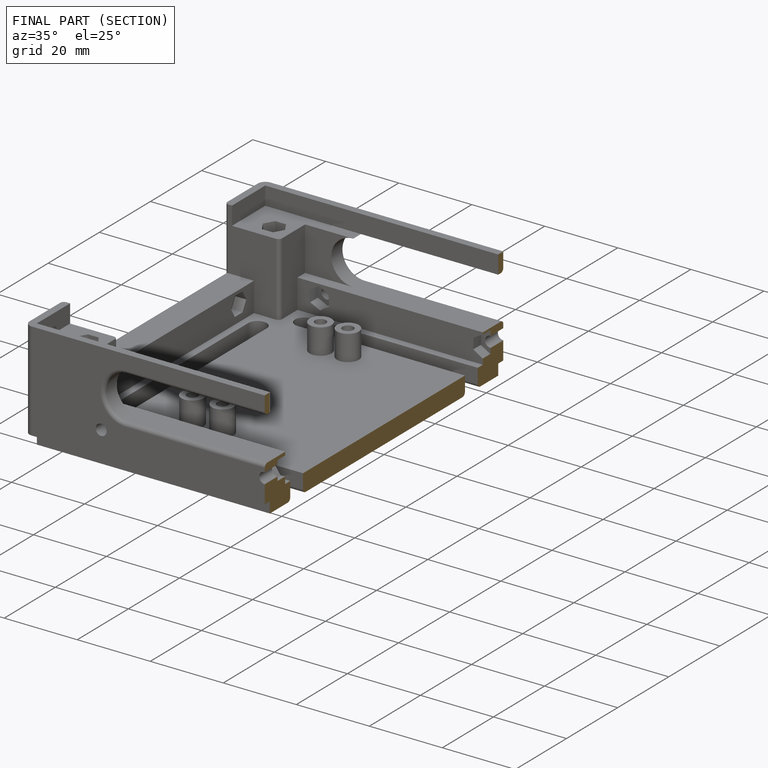
[diagram: finished part — half-section view (interior)]
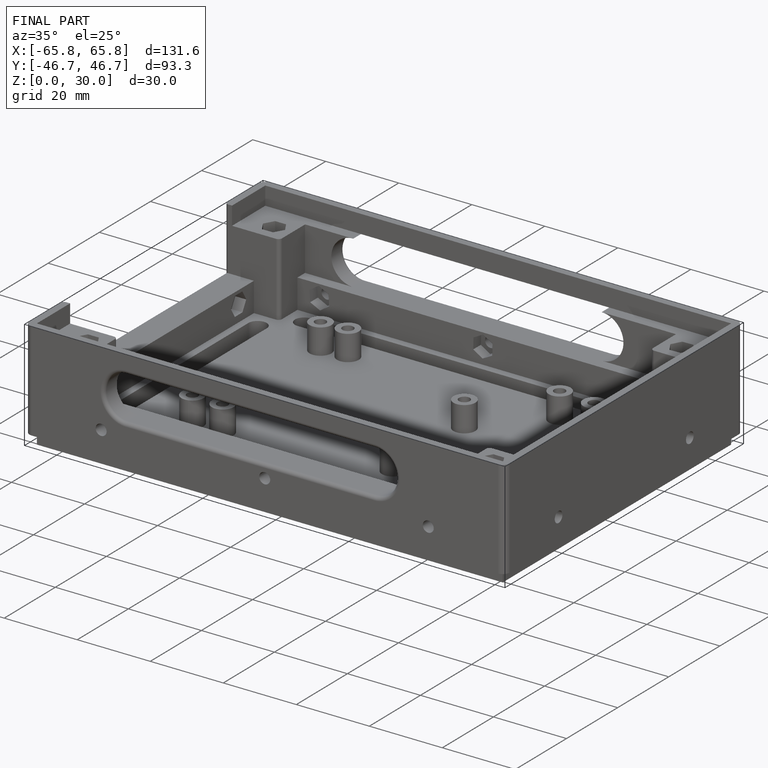
[diagram: finished part — iso view with bounding-box wireframe]
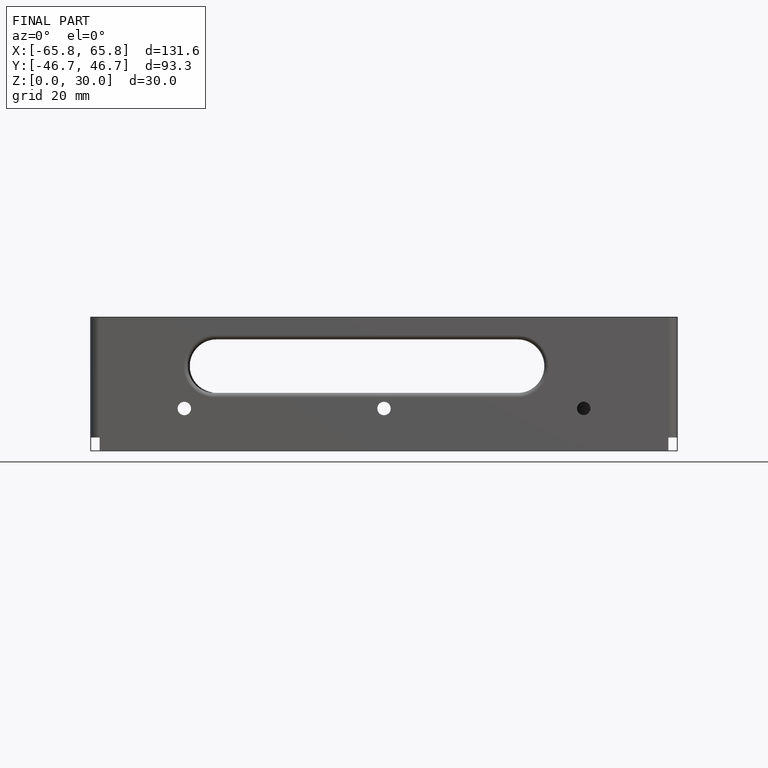
[diagram: finished part — front view with bounding-box wireframe]
